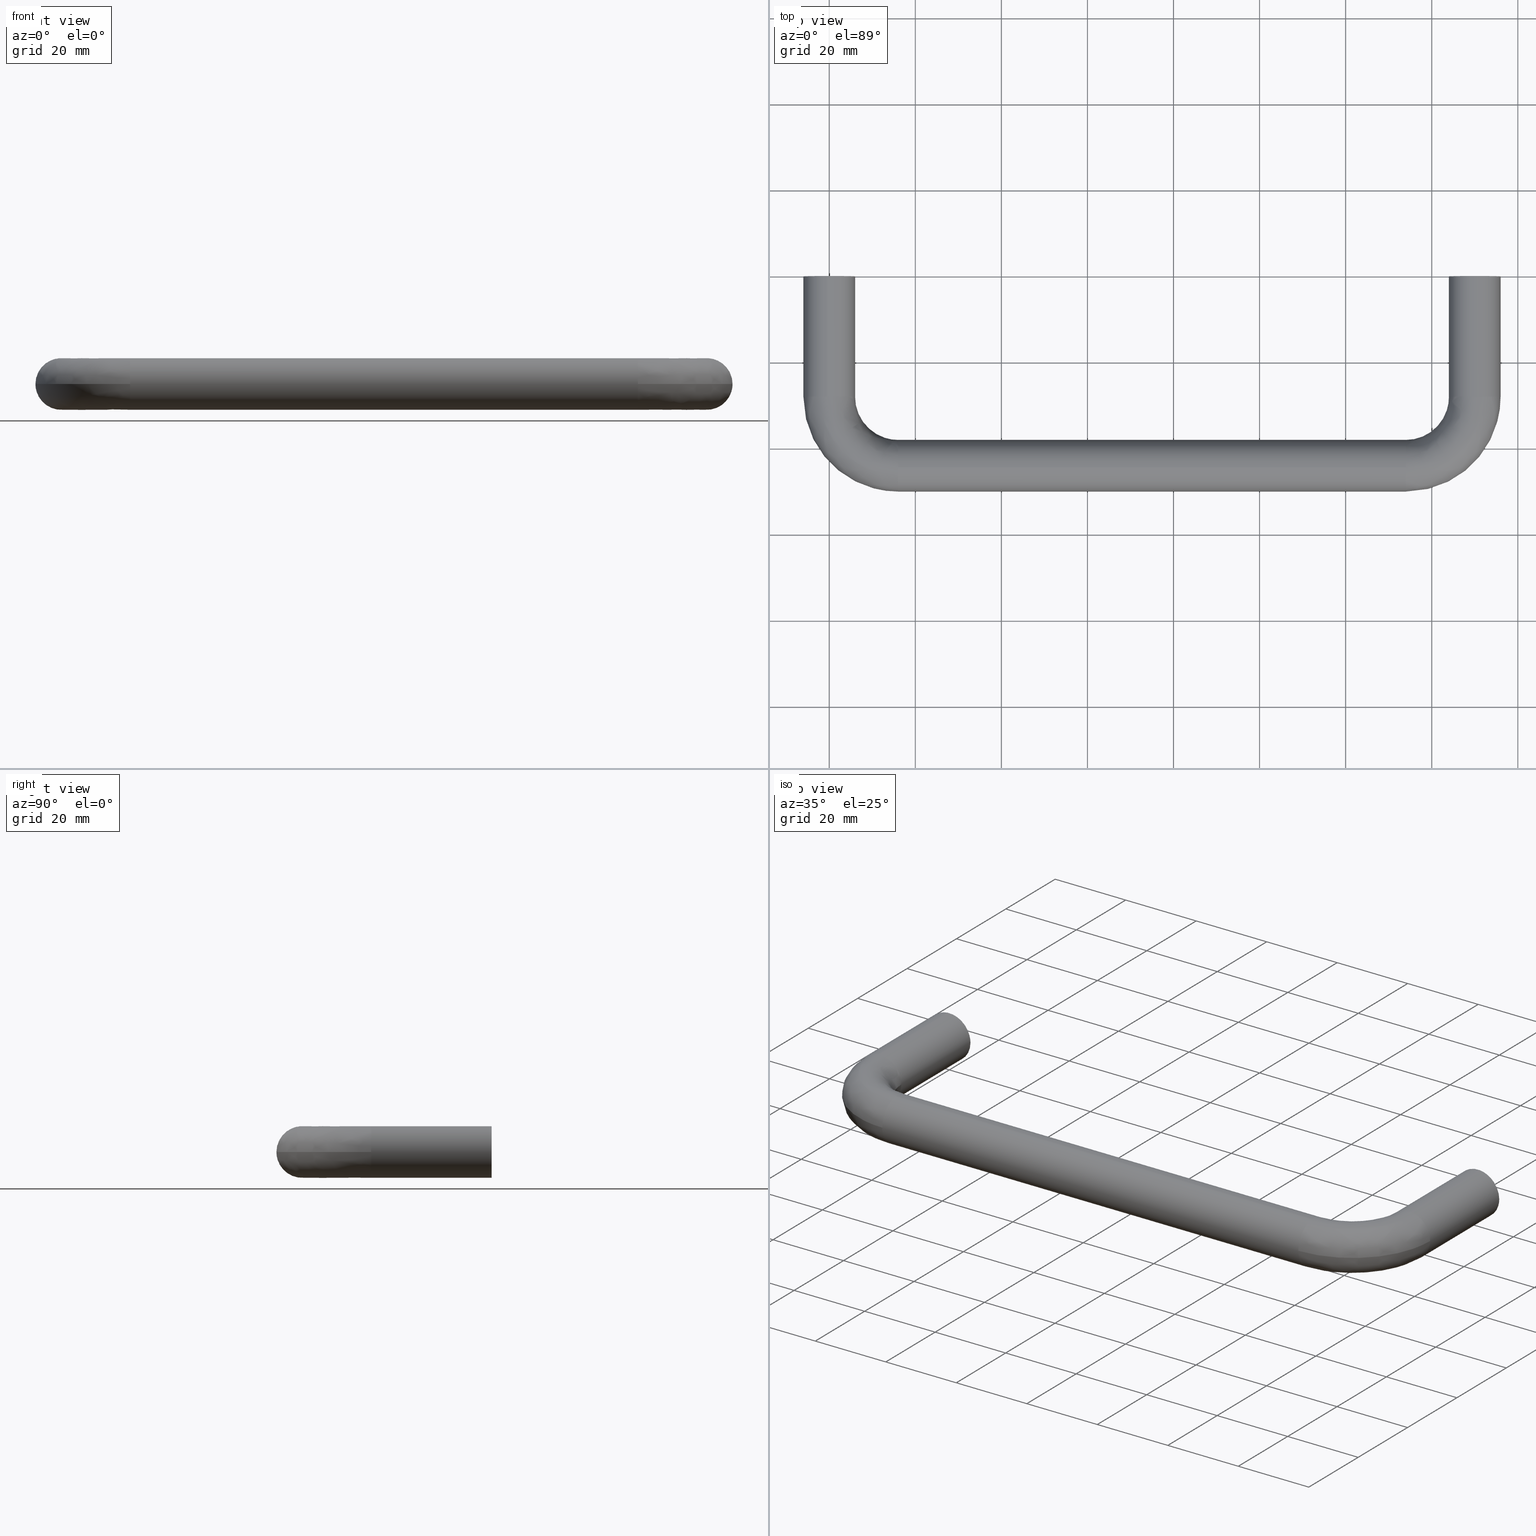
[diagram: canonical four-view strip — front | top / right | iso, engineering-drawing reading convention]
A machine part, canonical four-view strip (front | top / right | iso — engineering-drawing reading convention). The complete STEP part file that produces these views, byte-faithful:
ISO-10303-21;
HEADER;
/****************************************************************
 * Generated by software with PDE/Lib inside                    *
 * PDElib Version v5.1, created Sun 05/01/2005                  *
 * International Technegroup Inc. (www.iti-oh.com)              *
 ****************************************************************/
FILE_DESCRIPTION((''),'2;1');
FILE_NAME('','2011-05-27T14:34:39',(''),(''),'','CADfix','');
FILE_SCHEMA(('AUTOMOTIVE_DESIGN { 1 0 10303 214 1 1 1 1 }'));
ENDSEC;
DATA;
#5=CARTESIAN_POINT('',(145.601620989093500,-10.0,4.399599984494448));
#6=CARTESIAN_POINT('',(154.398379225483300,-10.0,4.399599984494448));
#7=CARTESIAN_POINT('',(145.601620989093500,-10.0,-4.399600199071169));
#8=CARTESIAN_POINT('',(154.398379225483300,-10.0,-4.399600199071169));
#9=B_SPLINE_SURFACE_WITH_KNOTS('',1,1,((#5,#7),(#6,#8)),.UNSPECIFIED.,.F.,.F.,.U.,(2,2),(2,2),(0.0,8.796758236389820),(0.0,8.799200183565617),.UNSPECIFIED.);
#10=CARTESIAN_POINT('',(153.987669334880910,-10.0,-0.313836383567220));
#11=VERTEX_POINT('',#10);
#12=CARTESIAN_POINT('',(150.0,-10.0,4.0));
#13=VERTEX_POINT('',#12);
#14=CARTESIAN_POINT('',(153.987669334880880,-9.999999999999998,-0.313836383567220));
#15=CARTESIAN_POINT('',(154.000000000000030,-9.999999999999998,-0.157160428360121));
#16=CARTESIAN_POINT('',(154.0,-10.0,0.0));
#17=CARTESIAN_POINT('',(153.999999999999970,-10.000000000000002,4.000000000000000));
#18=CARTESIAN_POINT('',(150.0,-10.0,4.0));
#26=(BOUNDED_CURVE()B_SPLINE_CURVE(2,(#14,#15,#16,#17,#18),.UNSPECIFIED.,.F.,.U.)B_SPLINE_CURVE_WITH_KNOTS((3,2,3),(0.736331300604573,0.750000000000000,1.0),.UNSPECIFIED.)CURVE()GEOMETRIC_REPRESENTATION_ITEM()RATIONAL_B_SPLINE_CURVE((0.969723356112977,0.983986122548320,1.0,0.707106781186548,1.0))REPRESENTATION_ITEM(''));
#27=EDGE_CURVE('',#11,#13,#26,.T.);
#28=ORIENTED_EDGE('',*,*,#27,.F.);
#29=CARTESIAN_POINT('',(150.0,-10.0,-4.0));
#30=VERTEX_POINT('',#29);
#31=CARTESIAN_POINT('',(150.0,-10.0,-4.0));
#32=CARTESIAN_POINT('',(153.697561966022850,-10.0,-4.000000000000001));
#33=CARTESIAN_POINT('',(153.987669334880930,-10.000000000000002,-0.313836383567223));
#41=(BOUNDED_CURVE()B_SPLINE_CURVE(2,(#31,#32,#33),.UNSPECIFIED.,.F.,.U.)B_SPLINE_CURVE_WITH_KNOTS((3,3),(0.500000000000000,0.736331300604573),.UNSPECIFIED.)CURVE()GEOMETRIC_REPRESENTATION_ITEM()RATIONAL_B_SPLINE_CURVE((1.0,0.723120658638228,0.969723356112977))REPRESENTATION_ITEM(''));
#42=EDGE_CURVE('',#30,#11,#41,.T.);
#43=ORIENTED_EDGE('',*,*,#42,.F.);
#44=CARTESIAN_POINT('',(146.012330665119090,-10.0,0.313836383567219));
#45=VERTEX_POINT('',#44);
#46=CARTESIAN_POINT('',(146.012330665119090,-10.0,0.313836383567219));
#47=CARTESIAN_POINT('',(146.0,-10.0,0.157160428360120));
#48=CARTESIAN_POINT('',(146.0,-10.0,0.0));
#49=CARTESIAN_POINT('',(146.000000000000090,-10.000000000000002,-4.000000000000000));
#50=CARTESIAN_POINT('',(150.0,-10.0,-4.0));
#58=(BOUNDED_CURVE()B_SPLINE_CURVE(2,(#46,#47,#48,#49,#50),.UNSPECIFIED.,.F.,.U.)B_SPLINE_CURVE_WITH_KNOTS((3,2,3),(0.236331300604573,0.250000000000000,0.500000000000000),.UNSPECIFIED.)CURVE()GEOMETRIC_REPRESENTATION_ITEM()RATIONAL_B_SPLINE_CURVE((0.969723356112977,0.983986122548320,1.0,0.707106781186548,1.0))REPRESENTATION_ITEM(''));
#59=EDGE_CURVE('',#45,#30,#58,.T.);
#60=ORIENTED_EDGE('',*,*,#59,.F.);
#61=CARTESIAN_POINT('',(150.0,-10.0,4.0));
#62=CARTESIAN_POINT('',(146.302438033977210,-9.999999999999998,4.0));
#63=CARTESIAN_POINT('',(146.012330665119090,-10.0,0.313836383567219));
#71=(BOUNDED_CURVE()B_SPLINE_CURVE(2,(#61,#62,#63),.UNSPECIFIED.,.F.,.U.)B_SPLINE_CURVE_WITH_KNOTS((3,3),(0.0,0.236331300604573),.UNSPECIFIED.)CURVE()GEOMETRIC_REPRESENTATION_ITEM()RATIONAL_B_SPLINE_CURVE((1.0,0.723120658638228,0.969723356112977))REPRESENTATION_ITEM(''));
#72=EDGE_CURVE('',#13,#45,#71,.T.);
#73=ORIENTED_EDGE('',*,*,#72,.F.);
#74=EDGE_LOOP('',(#28,#43,#60,#73));
#75=FACE_OUTER_BOUND('',#74,.T.);
#76=ADVANCED_FACE('',(#75),#9,.T.);
#77=CARTESIAN_POINT('',(146.012330665067510,-10.250000000000000,0.313836382911382));
#78=CARTESIAN_POINT('',(146.326167047978880,-10.250000000000002,4.301505717843893));
#79=CARTESIAN_POINT('',(150.313836382911400,-10.250000000000000,3.987669334932511));
#80=CARTESIAN_POINT('',(154.301505717843950,-10.250000000000002,3.673832952021128));
#81=CARTESIAN_POINT('',(153.987669334932490,-10.250000000000000,-0.313836382911382));
#82=CARTESIAN_POINT('',(146.012330665067510,0.256250000000001,0.313836382911382));
#83=CARTESIAN_POINT('',(146.326167047978880,0.256250000000001,4.301505717843893));
#84=CARTESIAN_POINT('',(150.313836382911400,0.256250000000001,3.987669334932511));
#85=CARTESIAN_POINT('',(154.301505717843950,0.256250000000001,3.673832952021128));
#86=CARTESIAN_POINT('',(153.987669334932490,0.256250000000001,-0.313836382911382));
#94=(BOUNDED_SURFACE()B_SPLINE_SURFACE(2,1,((#77,#82),(#78,#83),(#79,#84),(#80,#85),(#81,#86)),.UNSPECIFIED.,.F.,.F.,.U.)B_SPLINE_SURFACE_WITH_KNOTS((3,2,3),(2,2),(0.0,6.627416997969530,13.254833995939061),(0.0,10.506250000000000),.UNSPECIFIED.)GEOMETRIC_REPRESENTATION_ITEM()RATIONAL_B_SPLINE_SURFACE(((1.0,1.0),(0.707106781186548,0.707106781186548),(1.0,1.0),(0.707106781186548,0.707106781186548),(1.0,1.0)))REPRESENTATION_ITEM('')SURFACE());
#95=ORIENTED_EDGE('',*,*,#72,.T.);
#96=CARTESIAN_POINT('',(146.012330665119090,-2.775558E-017,0.313836383567221));
#97=VERTEX_POINT('',#96);
#98=CARTESIAN_POINT('',(146.012330665119090,-10.0,0.313836383567219));
#99=CARTESIAN_POINT('',(146.012330665119090,-2.775558E-017,0.313836383567221));
#100=QUASI_UNIFORM_CURVE('',1,(#98,#99),.UNSPECIFIED.,.F.,.U.);
#101=EDGE_CURVE('',#45,#97,#100,.T.);
#102=ORIENTED_EDGE('',*,*,#101,.T.);
#103=CARTESIAN_POINT('',(150.0,0.0,4.0));
#104=VERTEX_POINT('',#103);
#105=CARTESIAN_POINT('',(150.0,0.0,4.0));
#106=CARTESIAN_POINT('',(146.302438033977180,0.0,4.000000000000001));
#107=CARTESIAN_POINT('',(146.012330665119070,0.0,0.313836383567224));
#115=(BOUNDED_CURVE()B_SPLINE_CURVE(2,(#105,#106,#107),.UNSPECIFIED.,.F.,.U.)B_SPLINE_CURVE_WITH_KNOTS((3,3),(0.0,0.236331300604573),.UNSPECIFIED.)CURVE()GEOMETRIC_REPRESENTATION_ITEM()RATIONAL_B_SPLINE_CURVE((1.0,0.723120658638228,0.969723356112977))REPRESENTATION_ITEM(''));
#116=EDGE_CURVE('',#104,#97,#115,.T.);
#117=ORIENTED_EDGE('',*,*,#116,.F.);
#118=CARTESIAN_POINT('',(153.987669334880910,-2.775558E-017,-0.313836383567220));
#119=VERTEX_POINT('',#118);
#120=CARTESIAN_POINT('',(153.987669334880880,0.0,-0.313836383567220));
#121=CARTESIAN_POINT('',(154.000000000000030,0.0,-0.157160428360121));
#122=CARTESIAN_POINT('',(154.0,0.0,0.0));
#123=CARTESIAN_POINT('',(153.999999999999970,0.0,4.000000000000000));
#124=CARTESIAN_POINT('',(150.0,0.0,4.0));
#132=(BOUNDED_CURVE()B_SPLINE_CURVE(2,(#120,#121,#122,#123,#124),.UNSPECIFIED.,.F.,.U.)B_SPLINE_CURVE_WITH_KNOTS((3,2,3),(0.736331300604573,0.750000000000000,1.0),.UNSPECIFIED.)CURVE()GEOMETRIC_REPRESENTATION_ITEM()RATIONAL_B_SPLINE_CURVE((0.969723356112977,0.983986122548320,1.0,0.707106781186548,1.0))REPRESENTATION_ITEM(''));
#133=EDGE_CURVE('',#119,#104,#132,.T.);
#134=ORIENTED_EDGE('',*,*,#133,.F.);
#135=CARTESIAN_POINT('',(153.987669334880910,-10.0,-0.313836383567220));
#136=CARTESIAN_POINT('',(153.987669334880910,-2.775558E-017,-0.313836383567220));
#137=QUASI_UNIFORM_CURVE('',1,(#135,#136),.UNSPECIFIED.,.F.,.U.);
#138=EDGE_CURVE('',#11,#119,#137,.T.);
#139=ORIENTED_EDGE('',*,*,#138,.F.);
#140=ORIENTED_EDGE('',*,*,#27,.T.);
#141=EDGE_LOOP('',(#95,#102,#117,#134,#139,#140));
#142=FACE_OUTER_BOUND('',#141,.T.);
#143=ADVANCED_FACE('',(#142),#94,.F.);
#144=CARTESIAN_POINT('',(153.987669334932490,-10.250000000000000,-0.313836382911382));
#145=CARTESIAN_POINT('',(153.673832952021170,-10.250000000000002,-4.301505717843893));
#146=CARTESIAN_POINT('',(149.686163617088600,-10.250000000000000,-3.987669334932511));
#147=CARTESIAN_POINT('',(145.698494282156100,-10.250000000000002,-3.673832952021128));
#148=CARTESIAN_POINT('',(146.012330665067510,-10.250000000000000,0.313836382911382));
#149=CARTESIAN_POINT('',(153.987669334932490,0.256250000000001,-0.313836382911382));
#150=CARTESIAN_POINT('',(153.673832952021170,0.256250000000001,-4.301505717843893));
#151=CARTESIAN_POINT('',(149.686163617088600,0.256250000000001,-3.987669334932511));
#152=CARTESIAN_POINT('',(145.698494282156100,0.256250000000001,-3.673832952021128));
#153=CARTESIAN_POINT('',(146.012330665067510,0.256250000000001,0.313836382911382));
#161=(BOUNDED_SURFACE()B_SPLINE_SURFACE(2,1,((#144,#149),(#145,#150),(#146,#151),(#147,#152),(#148,#153)),.UNSPECIFIED.,.F.,.F.,.U.)B_SPLINE_SURFACE_WITH_KNOTS((3,2,3),(2,2),(0.0,6.627416997969530,13.254833995939061),(0.0,10.506250000000000),.UNSPECIFIED.)GEOMETRIC_REPRESENTATION_ITEM()RATIONAL_B_SPLINE_SURFACE(((1.0,1.0),(0.707106781186548,0.707106781186548),(1.0,1.0),(0.707106781186548,0.707106781186548),(1.0,1.0)))REPRESENTATION_ITEM('')SURFACE());
#162=ORIENTED_EDGE('',*,*,#59,.T.);
#163=ORIENTED_EDGE('',*,*,#42,.T.);
#164=ORIENTED_EDGE('',*,*,#138,.T.);
#165=CARTESIAN_POINT('',(150.0,0.0,-4.0));
#166=VERTEX_POINT('',#165);
#167=CARTESIAN_POINT('',(150.0,0.0,-4.0));
#168=CARTESIAN_POINT('',(153.697561966022790,0.0,-4.000000000000000));
#169=CARTESIAN_POINT('',(153.987669334880850,0.0,-0.313836383567218));
#177=(BOUNDED_CURVE()B_SPLINE_CURVE(2,(#167,#168,#169),.UNSPECIFIED.,.F.,.U.)B_SPLINE_CURVE_WITH_KNOTS((3,3),(0.500000000000000,0.736331300604573),.UNSPECIFIED.)CURVE()GEOMETRIC_REPRESENTATION_ITEM()RATIONAL_B_SPLINE_CURVE((1.0,0.723120658638228,0.969723356112978))REPRESENTATION_ITEM(''));
#178=EDGE_CURVE('',#166,#119,#177,.T.);
#179=ORIENTED_EDGE('',*,*,#178,.F.);
#180=CARTESIAN_POINT('',(146.012330665119070,0.0,0.313836383567224));
#181=CARTESIAN_POINT('',(146.000000000000030,0.0,0.157160428360122));
#182=CARTESIAN_POINT('',(146.0,0.0,0.0));
#183=CARTESIAN_POINT('',(146.000000000000090,0.0,-4.000000000000000));
#184=CARTESIAN_POINT('',(150.0,0.0,-4.0));
#192=(BOUNDED_CURVE()B_SPLINE_CURVE(2,(#180,#181,#182,#183,#184),.UNSPECIFIED.,.F.,.U.)B_SPLINE_CURVE_WITH_KNOTS((3,2,3),(0.236331300604573,0.250000000000000,0.500000000000000),.UNSPECIFIED.)CURVE()GEOMETRIC_REPRESENTATION_ITEM()RATIONAL_B_SPLINE_CURVE((0.969723356112977,0.983986122548320,1.0,0.707106781186548,1.0))REPRESENTATION_ITEM(''));
#193=EDGE_CURVE('',#97,#166,#192,.T.);
#194=ORIENTED_EDGE('',*,*,#193,.F.);
#195=ORIENTED_EDGE('',*,*,#101,.F.);
#196=EDGE_LOOP('',(#162,#163,#164,#179,#194,#195));
#197=FACE_OUTER_BOUND('',#196,.T.);
#198=ADVANCED_FACE('',(#197),#161,.F.);
#199=CARTESIAN_POINT('',(156.599399976741690,1.734723E-014,-6.597568516360731));
#200=CARTESIAN_POINT('',(143.400599701393300,1.734723E-014,-6.597568516360731));
#201=CARTESIAN_POINT('',(156.599399976741690,1.734723E-014,6.597568838225813));
#202=CARTESIAN_POINT('',(143.400599701393300,1.734723E-014,6.597568838225813));
#203=B_SPLINE_SURFACE_WITH_KNOTS('',1,1,((#199,#201),(#200,#202)),.UNSPECIFIED.,.F.,.F.,.U.,(2,2),(2,2),(0.0,13.198800275348420),(0.0,13.195137354586540),.UNSPECIFIED.);
#204=CARTESIAN_POINT('',(150.470754574599400,1.749989E-014,5.981504002380483));
#205=VERTEX_POINT('',#204);
#206=CARTESIAN_POINT('',(144.0,1.734723E-014,0.0));
#207=VERTEX_POINT('',#206);
#208=CARTESIAN_POINT('',(150.470754574599400,1.734723E-014,5.981504002380485));
#209=CARTESIAN_POINT('',(150.235740642162710,1.734723E-014,6.0));
#210=CARTESIAN_POINT('',(150.0,1.734723E-014,6.0));
#211=CARTESIAN_POINT('',(144.000000000000060,1.734723E-014,6.0));
#212=CARTESIAN_POINT('',(144.0,1.734723E-014,0.0));
#220=(BOUNDED_CURVE()B_SPLINE_CURVE(2,(#208,#209,#210,#211,#212),.UNSPECIFIED.,.F.,.U.)B_SPLINE_CURVE_WITH_KNOTS((3,2,3),(0.736331300626109,0.750000000000000,1.0),.UNSPECIFIED.)CURVE()GEOMETRIC_REPRESENTATION_ITEM()RATIONAL_B_SPLINE_CURVE((0.969723356157921,0.983986122573551,1.0,0.707106781186548,1.0))REPRESENTATION_ITEM(''));
#221=EDGE_CURVE('',#205,#207,#220,.T.);
#222=ORIENTED_EDGE('',*,*,#221,.F.);
#223=CARTESIAN_POINT('',(156.0,1.734723E-014,0.0));
#224=VERTEX_POINT('',#223);
#225=CARTESIAN_POINT('',(156.0,1.734723E-014,0.0));
#226=CARTESIAN_POINT('',(155.999999999999970,1.734723E-014,5.546342949733163));
#227=CARTESIAN_POINT('',(150.470754574599310,1.734723E-014,5.981504002380484));
#235=(BOUNDED_CURVE()B_SPLINE_CURVE(2,(#225,#226,#227),.UNSPECIFIED.,.F.,.U.)B_SPLINE_CURVE_WITH_KNOTS((3,3),(0.500000000000000,0.736331300626109),.UNSPECIFIED.)CURVE()GEOMETRIC_REPRESENTATION_ITEM()RATIONAL_B_SPLINE_CURVE((1.0,0.723120658612997,0.969723356157921))REPRESENTATION_ITEM(''));
#236=EDGE_CURVE('',#224,#205,#235,.T.);
#237=ORIENTED_EDGE('',*,*,#236,.F.);
#238=CARTESIAN_POINT('',(149.529245425400600,1.749989E-014,-5.981504002380483));
#239=VERTEX_POINT('',#238);
#240=CARTESIAN_POINT('',(149.529245425400570,1.734723E-014,-5.981504002380484));
#241=CARTESIAN_POINT('',(149.764259357837290,1.734723E-014,-6.0));
#242=CARTESIAN_POINT('',(150.0,1.734723E-014,-6.0));
#243=CARTESIAN_POINT('',(155.999999999999970,1.734723E-014,-6.0));
#244=CARTESIAN_POINT('',(156.0,1.734723E-014,0.0));
#252=(BOUNDED_CURVE()B_SPLINE_CURVE(2,(#240,#241,#242,#243,#244),.UNSPECIFIED.,.F.,.U.)B_SPLINE_CURVE_WITH_KNOTS((3,2,3),(0.236331300626108,0.250000000000000,0.500000000000000),.UNSPECIFIED.)CURVE()GEOMETRIC_REPRESENTATION_ITEM()RATIONAL_B_SPLINE_CURVE((0.969723356157920,0.983986122573550,1.0,0.707106781186548,1.0))REPRESENTATION_ITEM(''));
#253=EDGE_CURVE('',#239,#224,#252,.T.);
#254=ORIENTED_EDGE('',*,*,#253,.F.);
#255=CARTESIAN_POINT('',(144.0,1.734723E-014,0.0));
#256=CARTESIAN_POINT('',(144.000000000000060,1.734723E-014,-5.546342949733168));
#257=CARTESIAN_POINT('',(149.529245425400660,1.734723E-014,-5.981504002380485));
#265=(BOUNDED_CURVE()B_SPLINE_CURVE(2,(#255,#256,#257),.UNSPECIFIED.,.F.,.U.)B_SPLINE_CURVE_WITH_KNOTS((3,3),(0.0,0.236331300626109),.UNSPECIFIED.)CURVE()GEOMETRIC_REPRESENTATION_ITEM()RATIONAL_B_SPLINE_CURVE((1.0,0.723120658612997,0.969723356157921))REPRESENTATION_ITEM(''));
#266=EDGE_CURVE('',#207,#239,#265,.T.);
#267=ORIENTED_EDGE('',*,*,#266,.F.);
#268=EDGE_LOOP('',(#222,#237,#254,#267));
#269=FACE_OUTER_BOUND('',#268,.T.);
#270=ORIENTED_EDGE('',*,*,#178,.T.);
#271=ORIENTED_EDGE('',*,*,#133,.T.);
#272=ORIENTED_EDGE('',*,*,#116,.T.);
#273=ORIENTED_EDGE('',*,*,#193,.T.);
#274=EDGE_LOOP('',(#270,#271,#272,#273));
#275=FACE_BOUND('',#274,.T.);
#276=ADVANCED_FACE('',(#269,#275),#203,.T.);
#277=CARTESIAN_POINT('',(149.529245425632890,-28.700000000377589,-5.981504002398766));
#278=CARTESIAN_POINT('',(143.547741423234240,-28.700000000377589,-5.510749428031692));
#279=CARTESIAN_POINT('',(144.018495997601210,-28.700000000377589,0.470754574367073));
#280=CARTESIAN_POINT('',(144.489250571968400,-28.700000000377589,6.452258576765839));
#281=CARTESIAN_POINT('',(150.470754574367110,-28.700000000377589,5.981504002398766));
#282=CARTESIAN_POINT('',(149.529245425632890,0.717500000009458,-5.981504002398766));
#283=CARTESIAN_POINT('',(143.547741423234240,0.717500000009459,-5.510749428031692));
#284=CARTESIAN_POINT('',(144.018495997601210,0.717500000009458,0.470754574367073));
#285=CARTESIAN_POINT('',(144.489250571968400,0.717500000009459,6.452258576765839));
#286=CARTESIAN_POINT('',(150.470754574367110,0.717500000009458,5.981504002398766));
#294=(BOUNDED_SURFACE()B_SPLINE_SURFACE(2,1,((#277,#282),(#278,#283),(#279,#284),(#280,#285),(#281,#286)),.UNSPECIFIED.,.F.,.F.,.U.)B_SPLINE_SURFACE_WITH_KNOTS((3,2,3),(2,2),(0.0,9.941125496954282,19.882250993908560),(0.0,29.417500000387051),.UNSPECIFIED.)GEOMETRIC_REPRESENTATION_ITEM()RATIONAL_B_SPLINE_SURFACE(((1.0,1.0),(0.707106781186548,0.707106781186548),(1.0,1.0),(0.707106781186548,0.707106781186548),(1.0,1.0)))REPRESENTATION_ITEM('')SURFACE());
#295=CARTESIAN_POINT('',(144.0,-28.000000000368381,-4.420586E-016));
#296=VERTEX_POINT('',#295);
#297=CARTESIAN_POINT('',(149.529245425400600,-27.999987601051860,-5.981504002381076));
#298=VERTEX_POINT('',#297);
#299=CARTESIAN_POINT('',(144.0,-28.000000000368381,-4.420586E-016));
#300=CARTESIAN_POINT('',(144.000000000000030,-28.000000000368388,-5.546342949747148));
#301=CARTESIAN_POINT('',(149.529245425400520,-27.999987601051870,-5.981504002381668));
#309=(BOUNDED_CURVE()B_SPLINE_CURVE(2,(#299,#300,#301),.UNSPECIFIED.,.F.,.U.)B_SPLINE_CURVE_WITH_KNOTS((3,3),(0.0,0.472662601253080),.UNSPECIFIED.)CURVE()GEOMETRIC_REPRESENTATION_ITEM()RATIONAL_B_SPLINE_CURVE((1.0,0.723120658612492,0.969723356158820))REPRESENTATION_ITEM(''));
#310=EDGE_CURVE('',#296,#298,#309,.T.);
#311=ORIENTED_EDGE('',*,*,#310,.F.);
#312=CARTESIAN_POINT('',(150.470754574599310,-27.999985489720380,5.981504002379788));
#313=VERTEX_POINT('',#312);
#314=CARTESIAN_POINT('',(150.470754574599340,-27.999985489720387,5.981504002379788));
#315=CARTESIAN_POINT('',(150.235740642154520,-27.999986016738429,6.000000000000680));
#316=CARTESIAN_POINT('',(149.999999999983600,-27.999986545386118,6.000000000000666));
#317=CARTESIAN_POINT('',(144.000000000000060,-28.000000000368384,6.000000000000321));
#318=CARTESIAN_POINT('',(144.0,-28.000000000368381,-4.420586E-016));
#326=(BOUNDED_CURVE()B_SPLINE_CURVE(2,(#314,#315,#316,#317,#318),.UNSPECIFIED.,.F.,.U.)B_SPLINE_CURVE_WITH_KNOTS((3,2,3),(0.472662601251207,0.500000000000000,1.0),.UNSPECIFIED.)CURVE()GEOMETRIC_REPRESENTATION_ITEM()RATIONAL_B_SPLINE_CURVE((0.969723356156866,0.983986122572958,1.0,0.707106781186548,1.0))REPRESENTATION_ITEM(''));
#327=EDGE_CURVE('',#313,#296,#326,.T.);
#328=ORIENTED_EDGE('',*,*,#327,.F.);
#329=CARTESIAN_POINT('',(150.470754574599310,-27.999985489720380,5.981504002379788));
#330=CARTESIAN_POINT('',(150.470754574599400,1.749989E-014,5.981504002380483));
#331=QUASI_UNIFORM_CURVE('',1,(#329,#330),.UNSPECIFIED.,.F.,.U.);
#332=EDGE_CURVE('',#313,#205,#331,.T.);
#333=ORIENTED_EDGE('',*,*,#332,.T.);
#334=ORIENTED_EDGE('',*,*,#221,.T.);
#335=ORIENTED_EDGE('',*,*,#266,.T.);
#336=CARTESIAN_POINT('',(149.529245425400600,-27.999987601051860,-5.981504002381076));
#337=CARTESIAN_POINT('',(149.529245425400600,1.749989E-014,-5.981504002380483));
#338=QUASI_UNIFORM_CURVE('',1,(#336,#337),.UNSPECIFIED.,.F.,.U.);
#339=EDGE_CURVE('',#298,#239,#338,.T.);
#340=ORIENTED_EDGE('',*,*,#339,.F.);
#341=EDGE_LOOP('',(#311,#328,#333,#334,#335,#340));
#342=FACE_OUTER_BOUND('',#341,.T.);
#343=ADVANCED_FACE('',(#342),#294,.T.);
#344=CARTESIAN_POINT('',(150.470754574367110,-28.700000000377589,5.981504002398766));
#345=CARTESIAN_POINT('',(156.452258576765810,-28.700000000377589,5.510749428031692));
#346=CARTESIAN_POINT('',(155.981504002398790,-28.700000000377589,-0.470754574367073));
#347=CARTESIAN_POINT('',(155.510749428031660,-28.700000000377589,-6.452258576765839));
#348=CARTESIAN_POINT('',(149.529245425632890,-28.700000000377589,-5.981504002398766));
#349=CARTESIAN_POINT('',(150.470754574367110,0.717500000009458,5.981504002398766));
#350=CARTESIAN_POINT('',(156.452258576765810,0.717500000009459,5.510749428031692));
#351=CARTESIAN_POINT('',(155.981504002398790,0.717500000009458,-0.470754574367073));
#352=CARTESIAN_POINT('',(155.510749428031660,0.717500000009459,-6.452258576765839));
#353=CARTESIAN_POINT('',(149.529245425632890,0.717500000009458,-5.981504002398766));
#361=(BOUNDED_SURFACE()B_SPLINE_SURFACE(2,1,((#344,#349),(#345,#350),(#346,#351),(#347,#352),(#348,#353)),.UNSPECIFIED.,.F.,.F.,.U.)B_SPLINE_SURFACE_WITH_KNOTS((3,2,3),(2,2),(0.0,9.941125496954307,19.882250993908610),(0.0,29.417500000387051),.UNSPECIFIED.)GEOMETRIC_REPRESENTATION_ITEM()RATIONAL_B_SPLINE_SURFACE(((1.0,1.0),(0.707106781186548,0.707106781186548),(1.0,1.0),(0.707106781186548,0.707106781186548),(1.0,1.0)))REPRESENTATION_ITEM('')SURFACE());
#362=CARTESIAN_POINT('',(155.999999999967090,-27.999973090403870,-7.347638E-016));
#363=VERTEX_POINT('',#362);
#364=CARTESIAN_POINT('',(149.529245425400520,-27.999987601051860,-5.981504002381076));
#365=CARTESIAN_POINT('',(149.764259357829050,-27.999987074033822,-6.000000000000001));
#366=CARTESIAN_POINT('',(149.999999999983490,-27.999986545386129,-6.000000000000001));
#367=CARTESIAN_POINT('',(155.999999999967170,-27.999973090403870,-6.000000000000003));
#368=CARTESIAN_POINT('',(155.999999999967090,-27.999973090403870,-7.347638E-016));
#376=(BOUNDED_CURVE()B_SPLINE_CURVE(2,(#364,#365,#366,#367,#368),.UNSPECIFIED.,.F.,.U.)B_SPLINE_CURVE_WITH_KNOTS((3,2,3),(0.472662601253080,0.500000000000000,1.0),.UNSPECIFIED.)CURVE()GEOMETRIC_REPRESENTATION_ITEM()RATIONAL_B_SPLINE_CURVE((0.969723356158820,0.983986122574055,1.0,0.707106781186548,1.0))REPRESENTATION_ITEM(''));
#377=EDGE_CURVE('',#298,#363,#376,.T.);
#378=ORIENTED_EDGE('',*,*,#377,.F.);
#379=ORIENTED_EDGE('',*,*,#339,.T.);
#380=ORIENTED_EDGE('',*,*,#253,.T.);
#381=ORIENTED_EDGE('',*,*,#236,.T.);
#382=ORIENTED_EDGE('',*,*,#332,.F.);
#383=CARTESIAN_POINT('',(155.999999999967090,-27.999973090403870,-7.347638E-016));
#384=CARTESIAN_POINT('',(155.999999999967140,-27.999973090403873,5.546342949717099));
#385=CARTESIAN_POINT('',(150.470754574599310,-27.999985489720384,5.981504002379788));
#393=(BOUNDED_CURVE()B_SPLINE_CURVE(2,(#383,#384,#385),.UNSPECIFIED.,.F.,.U.)B_SPLINE_CURVE_WITH_KNOTS((3,3),(0.0,0.472662601251207),.UNSPECIFIED.)CURVE()GEOMETRIC_REPRESENTATION_ITEM()RATIONAL_B_SPLINE_CURVE((1.0,0.723120658613589,0.969723356156866))REPRESENTATION_ITEM(''));
#394=EDGE_CURVE('',#363,#313,#393,.T.);
#395=ORIENTED_EDGE('',*,*,#394,.F.);
#396=EDGE_LOOP('',(#378,#379,#380,#381,#382,#395));
#397=FACE_OUTER_BOUND('',#396,.T.);
#398=ADVANCED_FACE('',(#397),#361,.T.);
#399=CARTESIAN_POINT('',(132.470154332437600,-49.946744000726859,-0.167740426151150));
#400=CARTESIAN_POINT('',(157.705853460307820,-51.705853460307821,-0.167740426151149));
#401=CARTESIAN_POINT('',(155.946744000726880,-26.470154332437591,-0.167740426151150));
#402=CARTESIAN_POINT('',(132.470154332437630,-49.946744000726845,-0.084358652198840));
#403=CARTESIAN_POINT('',(157.705853460307850,-51.705853460307829,-0.084358652198840));
#404=CARTESIAN_POINT('',(155.946744000726820,-26.470154332437588,-0.084358652198840));
#405=CARTESIAN_POINT('',(132.470154332437570,-49.946744000726852,5.999999999999997));
#406=CARTESIAN_POINT('',(157.705853460307820,-51.705853460307814,5.999999999999999));
#407=CARTESIAN_POINT('',(155.946744000726910,-26.470154332437588,5.999999999999998));
#408=CARTESIAN_POINT('',(132.887384969045510,-43.961268364164987,5.999999999999998));
#409=CARTESIAN_POINT('',(151.240620698405680,-45.240620698405699,5.999999999999998));
#410=CARTESIAN_POINT('',(149.961268364164990,-26.887384969045527,5.999999999999999));
#411=CARTESIAN_POINT('',(133.304615605653450,-37.975792727603107,5.999999999999997));
#412=CARTESIAN_POINT('',(144.775387936503590,-38.775387936503549,5.999999999999999));
#413=CARTESIAN_POINT('',(143.975792727603110,-27.304615605653442,5.999999999999998));
#414=CARTESIAN_POINT('',(133.304615605653510,-37.975792727603114,-0.084358652198840));
#415=CARTESIAN_POINT('',(144.775387936503560,-38.775387936503563,-0.084358652198840));
#416=CARTESIAN_POINT('',(143.975792727603080,-27.304615605653449,-0.084358652198840));
#417=CARTESIAN_POINT('',(133.304615605653420,-37.975792727603107,-0.167740426151150));
#418=CARTESIAN_POINT('',(144.775387936503590,-38.775387936503563,-0.167740426151150));
#419=CARTESIAN_POINT('',(143.975792727603140,-27.304615605653449,-0.167740426151150));
#427=(BOUNDED_SURFACE()B_SPLINE_SURFACE(2,2,((#399,#402,#405,#408,#411,#414,#417),(#400,#403,#406,#409,#412,#415,#418),(#401,#404,#407,#410,#413,#416,#419)),.UNSPECIFIED.,.F.,.F.,.U.)B_SPLINE_SURFACE_WITH_KNOTS((3,3),(3,1,2,1,3),(0.0,40.092296910875270),(0.0,0.198822509939086,10.139948006893400,20.081073503847708,20.279896013786800),.UNSPECIFIED.)GEOMETRIC_REPRESENTATION_ITEM()RATIONAL_B_SPLINE_SURFACE(((0.927078278878390,0.921710467872278,0.647952106560563,0.916342656866165,0.647952106560563,0.921710467872278,0.927078278878390),(0.608370985386885,0.604848499157232,0.425201701444961,0.601326012927580,0.425201701444961,0.604848499157232,0.608370985386885),(0.927078278878390,0.921710467872278,0.647952106560563,0.916342656866165,0.647952106560563,0.921710467872278,0.927078278878390)))REPRESENTATION_ITEM('')SURFACE());
#428=CARTESIAN_POINT('',(133.999973486176490,-49.999999999968040,-7.347638E-016));
#429=VERTEX_POINT('',#428);
#430=CARTESIAN_POINT('',(133.999973486176510,-49.999999999968033,-7.347638E-016));
#431=CARTESIAN_POINT('',(156.000026909636770,-50.000026513863915,-7.347638E-016));
#432=CARTESIAN_POINT('',(155.999999999967090,-27.999973090403863,-7.347638E-016));
#440=(BOUNDED_CURVE()B_SPLINE_CURVE(2,(#430,#431,#432),.UNSPECIFIED.,.F.,.U.)B_SPLINE_CURVE_WITH_KNOTS((3,3),(-1.734752043948219,-0.265247937358810),.UNSPECIFIED.)CURVE()GEOMETRIC_REPRESENTATION_ITEM()RATIONAL_B_SPLINE_CURVE((0.889030167379974,0.628638499101433,0.889030174004650))REPRESENTATION_ITEM(''));
#441=EDGE_CURVE('',#429,#363,#440,.T.);
#442=ORIENTED_EDGE('',*,*,#441,.T.);
#443=ORIENTED_EDGE('',*,*,#394,.T.);
#444=ORIENTED_EDGE('',*,*,#327,.T.);
#445=CARTESIAN_POINT('',(134.000000000131590,-38.0,-2.210293E-016));
#446=VERTEX_POINT('',#445);
#447=CARTESIAN_POINT('',(134.000000000131620,-37.999999999999993,-8.841173E-016));
#448=CARTESIAN_POINT('',(143.999999999631630,-37.999999999868358,-8.689584E-016));
#449=CARTESIAN_POINT('',(144.0,-28.000000000368374,-8.841173E-016));
#457=(BOUNDED_CURVE()B_SPLINE_CURVE(2,(#447,#448,#449),.UNSPECIFIED.,.F.,.U.)B_SPLINE_CURVE_WITH_KNOTS((3,3),(-1.734750791644724,-0.265249208379877),.UNSPECIFIED.)CURVE()GEOMETRIC_REPRESENTATION_ITEM()RATIONAL_B_SPLINE_CURVE((0.889029723571595,0.628638946226510,0.889029723562876))REPRESENTATION_ITEM(''));
#458=EDGE_CURVE('',#446,#296,#457,.T.);
#459=ORIENTED_EDGE('',*,*,#458,.F.);
#460=CARTESIAN_POINT('',(133.999985703023610,-44.470754574599333,5.981504002379809));
#461=VERTEX_POINT('',#460);
#462=CARTESIAN_POINT('',(133.999985703023640,-44.470754574599326,5.981504002379809));
#463=CARTESIAN_POINT('',(133.999986222286030,-44.235740642154759,6.000000000000660));
#464=CARTESIAN_POINT('',(133.999986743154100,-43.999999999984077,6.000000000000647));
#465=CARTESIAN_POINT('',(134.000000000131650,-38.000000000000021,6.000000000000312));
#466=CARTESIAN_POINT('',(134.000000000131590,-38.0,-2.210293E-016));
#474=(BOUNDED_CURVE()B_SPLINE_CURVE(2,(#462,#463,#464,#465,#466),.UNSPECIFIED.,.F.,.U.)B_SPLINE_CURVE_WITH_KNOTS((3,2,3),(0.472662601251237,0.500000000000000,1.0),.UNSPECIFIED.)CURVE()GEOMETRIC_REPRESENTATION_ITEM()RATIONAL_B_SPLINE_CURVE((0.969723356156897,0.983986122572976,1.0,0.707106781186548,1.0))REPRESENTATION_ITEM(''));
#475=EDGE_CURVE('',#461,#446,#474,.T.);
#476=ORIENTED_EDGE('',*,*,#475,.F.);
#477=CARTESIAN_POINT('',(133.999973486176490,-49.999999999968040,-7.347638E-016));
#478=CARTESIAN_POINT('',(133.999973486176540,-49.999999999968075,5.546342949717582));
#479=CARTESIAN_POINT('',(133.999985703023580,-44.470754574599319,5.981504002379809));
#487=(BOUNDED_CURVE()B_SPLINE_CURVE(2,(#477,#478,#479),.UNSPECIFIED.,.F.,.U.)B_SPLINE_CURVE_WITH_KNOTS((3,3),(0.0,0.472662601251237),.UNSPECIFIED.)CURVE()GEOMETRIC_REPRESENTATION_ITEM()RATIONAL_B_SPLINE_CURVE((1.0,0.723120658613572,0.969723356156897))REPRESENTATION_ITEM(''));
#488=EDGE_CURVE('',#429,#461,#487,.T.);
#489=ORIENTED_EDGE('',*,*,#488,.F.);
#490=EDGE_LOOP('',(#442,#443,#444,#459,#476,#489));
#491=FACE_OUTER_BOUND('',#490,.T.);
#492=ADVANCED_FACE('',(#491),#427,.T.);
#493=CARTESIAN_POINT('',(133.304615605653480,-37.975792727603114,0.167740426151145));
#494=CARTESIAN_POINT('',(144.775387936503560,-38.775387936503563,0.167740426151145));
#495=CARTESIAN_POINT('',(143.975792727603110,-27.304615605653449,0.167740426151145));
#496=CARTESIAN_POINT('',(133.304615605653420,-37.975792727603107,0.084358652198837));
#497=CARTESIAN_POINT('',(144.775387936503560,-38.775387936503556,0.084358652198837));
#498=CARTESIAN_POINT('',(143.975792727603110,-27.304615605653453,0.084358652198837));
#499=CARTESIAN_POINT('',(133.304615605653450,-37.975792727603107,-5.999999999999997));
#500=CARTESIAN_POINT('',(144.775387936503590,-38.775387936503549,-5.999999999999999));
#501=CARTESIAN_POINT('',(143.975792727603110,-27.304615605653442,-5.999999999999998));
#502=CARTESIAN_POINT('',(132.887384969045510,-43.961268364164987,-5.999999999999998));
#503=CARTESIAN_POINT('',(151.240620698405680,-45.240620698405699,-5.999999999999998));
#504=CARTESIAN_POINT('',(149.961268364164990,-26.887384969045527,-5.999999999999999));
#505=CARTESIAN_POINT('',(132.470154332437570,-49.946744000726852,-5.999999999999997));
#506=CARTESIAN_POINT('',(157.705853460307820,-51.705853460307814,-5.999999999999999));
#507=CARTESIAN_POINT('',(155.946744000726910,-26.470154332437588,-5.999999999999998));
#508=CARTESIAN_POINT('',(132.470154332437630,-49.946744000726845,0.084358652198840));
#509=CARTESIAN_POINT('',(157.705853460307850,-51.705853460307829,0.084358652198840));
#510=CARTESIAN_POINT('',(155.946744000726820,-26.470154332437588,0.084358652198840));
#511=CARTESIAN_POINT('',(132.470154332437600,-49.946744000726859,0.167740426151150));
#512=CARTESIAN_POINT('',(157.705853460307820,-51.705853460307821,0.167740426151149));
#513=CARTESIAN_POINT('',(155.946744000726880,-26.470154332437591,0.167740426151150));
#521=(BOUNDED_SURFACE()B_SPLINE_SURFACE(2,2,((#493,#496,#499,#502,#505,#508,#511),(#494,#497,#500,#503,#506,#509,#512),(#495,#498,#501,#504,#507,#510,#513)),.UNSPECIFIED.,.F.,.F.,.U.)B_SPLINE_SURFACE_WITH_KNOTS((3,3),(3,1,2,1,3),(0.0,40.092296910875270),(0.0,0.198822509939081,10.139948006893359,20.081073503847641,20.279896013786729),.UNSPECIFIED.)GEOMETRIC_REPRESENTATION_ITEM()RATIONAL_B_SPLINE_SURFACE(((0.927078278878389,0.921710467872277,0.647952106560563,0.916342656866165,0.647952106560563,0.921710467872278,0.927078278878390),(0.608370985386885,0.604848499157232,0.425201701444961,0.601326012927580,0.425201701444961,0.604848499157232,0.608370985386885),(0.927078278878389,0.921710467872277,0.647952106560563,0.916342656866165,0.647952106560563,0.921710467872278,0.927078278878390)))REPRESENTATION_ITEM('')SURFACE());
#522=ORIENTED_EDGE('',*,*,#441,.F.);
#523=CARTESIAN_POINT('',(133.999987783284500,-43.529245425400553,-5.981504002381058));
#524=VERTEX_POINT('',#523);
#525=CARTESIAN_POINT('',(133.999987783284470,-43.529245425400539,-5.981504002381058));
#526=CARTESIAN_POINT('',(133.999987264022110,-43.764259357829282,-6.000000000000001));
#527=CARTESIAN_POINT('',(133.999986743154010,-43.999999999984020,-6.000000000000001));
#528=CARTESIAN_POINT('',(133.999973486176510,-49.999999999968047,-6.000000000000003));
#529=CARTESIAN_POINT('',(133.999973486176490,-49.999999999968040,-7.347638E-016));
#537=(BOUNDED_CURVE()B_SPLINE_CURVE(2,(#525,#526,#527,#528,#529),.UNSPECIFIED.,.F.,.U.)B_SPLINE_CURVE_WITH_KNOTS((3,2,3),(0.472662601253055,0.500000000000000,1.0),.UNSPECIFIED.)CURVE()GEOMETRIC_REPRESENTATION_ITEM()RATIONAL_B_SPLINE_CURVE((0.969723356158795,0.983986122574041,1.0,0.707106781186548,1.0))REPRESENTATION_ITEM(''));
#538=EDGE_CURVE('',#524,#429,#537,.T.);
#539=ORIENTED_EDGE('',*,*,#538,.F.);
#540=CARTESIAN_POINT('',(134.000000000131590,-38.0,-2.210293E-016));
#541=CARTESIAN_POINT('',(134.000000000131620,-37.999999999999993,-5.546342949746755));
#542=CARTESIAN_POINT('',(133.999987783284550,-43.529245425400489,-5.981504002381636));
#550=(BOUNDED_CURVE()B_SPLINE_CURVE(2,(#540,#541,#542),.UNSPECIFIED.,.F.,.U.)B_SPLINE_CURVE_WITH_KNOTS((3,3),(0.0,0.472662601253055),.UNSPECIFIED.)CURVE()GEOMETRIC_REPRESENTATION_ITEM()RATIONAL_B_SPLINE_CURVE((1.0,0.723120658612506,0.969723356158795))REPRESENTATION_ITEM(''));
#551=EDGE_CURVE('',#446,#524,#550,.T.);
#552=ORIENTED_EDGE('',*,*,#551,.F.);
#553=ORIENTED_EDGE('',*,*,#458,.T.);
#554=ORIENTED_EDGE('',*,*,#310,.T.);
#555=ORIENTED_EDGE('',*,*,#377,.T.);
#556=EDGE_LOOP('',(#522,#539,#552,#553,#554,#555));
#557=FACE_OUTER_BOUND('',#556,.T.);
#558=ADVANCED_FACE('',(#557),#521,.T.);
#559=CARTESIAN_POINT('',(13.049999999604820,-43.529245425632929,-5.981504002398766));
#560=CARTESIAN_POINT('',(13.049999999604820,-37.547741423234164,-5.510749428031693));
#561=CARTESIAN_POINT('',(13.049999999604820,-38.018495997601242,0.470754574367073));
#562=CARTESIAN_POINT('',(13.049999999604820,-38.489250571968299,6.452258576765838));
#563=CARTESIAN_POINT('',(13.049999999604820,-44.470754574367071,5.981504002398766));
#564=CARTESIAN_POINT('',(137.023750000144790,-43.529245425632922,-5.981504002398766));
#565=CARTESIAN_POINT('',(137.023750000144790,-37.547741423234150,-5.510749428031693));
#566=CARTESIAN_POINT('',(137.023750000144790,-38.018495997601221,0.470754574367073));
#567=CARTESIAN_POINT('',(137.023750000144790,-38.489250571968284,6.452258576765838));
#568=CARTESIAN_POINT('',(137.023750000144790,-44.470754574367056,5.981504002398766));
#576=(BOUNDED_SURFACE()B_SPLINE_SURFACE(2,1,((#559,#564),(#560,#565),(#561,#566),(#562,#567),(#563,#568)),.UNSPECIFIED.,.F.,.F.,.U.)B_SPLINE_SURFACE_WITH_KNOTS((3,2,3),(2,2),(0.0,9.941125496954275,19.882250993908549),(0.0,123.973750000539990),.UNSPECIFIED.)GEOMETRIC_REPRESENTATION_ITEM()RATIONAL_B_SPLINE_SURFACE(((1.0,1.0),(0.707106781186548,0.707106781186548),(1.0,1.0),(0.707106781186548,0.707106781186548),(1.0,1.0)))REPRESENTATION_ITEM('')SURFACE());
#577=ORIENTED_EDGE('',*,*,#551,.T.);
#578=CARTESIAN_POINT('',(15.999999999718140,-43.529245425400610,-5.981504002380483));
#579=VERTEX_POINT('',#578);
#580=CARTESIAN_POINT('',(15.999999999718140,-43.529245425400610,-5.981504002380483));
#581=CARTESIAN_POINT('',(133.999987783284500,-43.529245425400553,-5.981504002381058));
#582=QUASI_UNIFORM_CURVE('',1,(#580,#581),.UNSPECIFIED.,.F.,.U.);
#583=EDGE_CURVE('',#579,#524,#582,.T.);
#584=ORIENTED_EDGE('',*,*,#583,.F.);
#585=CARTESIAN_POINT('',(15.999999999617669,-38.0,-4.410686E-016));
#586=VERTEX_POINT('',#585);
#587=CARTESIAN_POINT('',(15.999999999617669,-38.0,-4.410686E-016));
#588=CARTESIAN_POINT('',(15.999999999617668,-38.0,-5.546342949733146));
#589=CARTESIAN_POINT('',(15.999999999718137,-43.529245425400610,-5.981504002380483));
#597=(BOUNDED_CURVE()B_SPLINE_CURVE(2,(#587,#588,#589),.UNSPECIFIED.,.F.,.U.)B_SPLINE_CURVE_WITH_KNOTS((3,3),(0.0,0.472662601252217),.UNSPECIFIED.)CURVE()GEOMETRIC_REPRESENTATION_ITEM()RATIONAL_B_SPLINE_CURVE((1.0,0.723120658612998,0.969723356157920))REPRESENTATION_ITEM(''));
#598=EDGE_CURVE('',#586,#579,#597,.T.);
#599=ORIENTED_EDGE('',*,*,#598,.F.);
#600=CARTESIAN_POINT('',(15.999999999735239,-44.470754574599397,5.981504002380483));
#601=VERTEX_POINT('',#600);
#602=CARTESIAN_POINT('',(15.999999999735243,-44.470754574599397,5.981504002380483));
#603=CARTESIAN_POINT('',(15.999999999730976,-44.235740642162725,5.999999999999999));
#604=CARTESIAN_POINT('',(15.999999999726690,-44.000000000000007,5.999999999999999));
#605=CARTESIAN_POINT('',(15.999999999617666,-38.0,6.0));
#606=CARTESIAN_POINT('',(15.999999999617669,-38.0,-4.410686E-016));
#614=(BOUNDED_CURVE()B_SPLINE_CURVE(2,(#602,#603,#604,#605,#606),.UNSPECIFIED.,.F.,.U.)B_SPLINE_CURVE_WITH_KNOTS((3,2,3),(0.472662601252218,0.500000000000000,1.0),.UNSPECIFIED.)CURVE()GEOMETRIC_REPRESENTATION_ITEM()RATIONAL_B_SPLINE_CURVE((0.969723356157921,0.983986122573550,1.0,0.707106781186548,1.0))REPRESENTATION_ITEM(''));
#615=EDGE_CURVE('',#601,#586,#614,.T.);
#616=ORIENTED_EDGE('',*,*,#615,.F.);
#617=CARTESIAN_POINT('',(15.999999999735239,-44.470754574599397,5.981504002380483));
#618=CARTESIAN_POINT('',(133.999985703023610,-44.470754574599333,5.981504002379809));
#619=QUASI_UNIFORM_CURVE('',1,(#617,#618),.UNSPECIFIED.,.F.,.U.);
#620=EDGE_CURVE('',#601,#461,#619,.T.);
#621=ORIENTED_EDGE('',*,*,#620,.T.);
#622=ORIENTED_EDGE('',*,*,#475,.T.);
#623=EDGE_LOOP('',(#577,#584,#599,#616,#621,#622));
#624=FACE_OUTER_BOUND('',#623,.T.);
#625=ADVANCED_FACE('',(#624),#576,.T.);
#626=CARTESIAN_POINT('',(13.049999999604820,-44.470754574367071,5.981504002398766));
#627=CARTESIAN_POINT('',(13.049999999604820,-50.452258576765843,5.510749428031693));
#628=CARTESIAN_POINT('',(13.049999999604820,-49.981504002398772,-0.470754574367073));
#629=CARTESIAN_POINT('',(13.049999999604820,-49.510749428031694,-6.452258576765838));
#630=CARTESIAN_POINT('',(13.049999999604820,-43.529245425632929,-5.981504002398766));
#631=CARTESIAN_POINT('',(137.023750000144790,-44.470754574367056,5.981504002398766));
#632=CARTESIAN_POINT('',(137.023750000144790,-50.452258576765821,5.510749428031693));
#633=CARTESIAN_POINT('',(137.023750000144790,-49.981504002398751,-0.470754574367073));
#634=CARTESIAN_POINT('',(137.023750000144790,-49.510749428031673,-6.452258576765838));
#635=CARTESIAN_POINT('',(137.023750000144790,-43.529245425632922,-5.981504002398766));
#643=(BOUNDED_SURFACE()B_SPLINE_SURFACE(2,1,((#626,#631),(#627,#632),(#628,#633),(#629,#634),(#630,#635)),.UNSPECIFIED.,.F.,.F.,.U.)B_SPLINE_SURFACE_WITH_KNOTS((3,2,3),(2,2),(0.0,9.941125496954285,19.882250993908571),(0.0,123.973750000539990),.UNSPECIFIED.)GEOMETRIC_REPRESENTATION_ITEM()RATIONAL_B_SPLINE_SURFACE(((1.0,1.0),(0.707106781186548,0.707106781186548),(1.0,1.0),(0.707106781186548,0.707106781186548),(1.0,1.0)))REPRESENTATION_ITEM('')SURFACE());
#644=ORIENTED_EDGE('',*,*,#538,.T.);
#645=ORIENTED_EDGE('',*,*,#488,.T.);
#646=ORIENTED_EDGE('',*,*,#620,.F.);
#647=CARTESIAN_POINT('',(15.999999999835710,-50.0,-7.347638E-016));
#648=VERTEX_POINT('',#647);
#649=CARTESIAN_POINT('',(15.999999999835710,-50.0,-7.347638E-016));
#650=CARTESIAN_POINT('',(15.999999999835715,-49.999999999999986,5.546342949733154));
#651=CARTESIAN_POINT('',(15.999999999735246,-44.470754574599397,5.981504002380483));
#659=(BOUNDED_CURVE()B_SPLINE_CURVE(2,(#649,#650,#651),.UNSPECIFIED.,.F.,.U.)B_SPLINE_CURVE_WITH_KNOTS((3,3),(0.0,0.472662601252217),.UNSPECIFIED.)CURVE()GEOMETRIC_REPRESENTATION_ITEM()RATIONAL_B_SPLINE_CURVE((1.0,0.723120658612997,0.969723356157920))REPRESENTATION_ITEM(''));
#660=EDGE_CURVE('',#648,#601,#659,.T.);
#661=ORIENTED_EDGE('',*,*,#660,.F.);
#662=CARTESIAN_POINT('',(15.999999999718137,-43.529245425400610,-5.981504002380483));
#663=CARTESIAN_POINT('',(15.999999999722403,-43.764259357837282,-6.000000000000002));
#664=CARTESIAN_POINT('',(15.999999999726690,-44.000000000000007,-6.000000000000001));
#665=CARTESIAN_POINT('',(15.999999999835708,-50.0,-6.000000000000003));
#666=CARTESIAN_POINT('',(15.999999999835710,-50.0,-7.347638E-016));
#674=(BOUNDED_CURVE()B_SPLINE_CURVE(2,(#662,#663,#664,#665,#666),.UNSPECIFIED.,.F.,.U.)B_SPLINE_CURVE_WITH_KNOTS((3,2,3),(0.472662601252217,0.500000000000000,1.0),.UNSPECIFIED.)CURVE()GEOMETRIC_REPRESENTATION_ITEM()RATIONAL_B_SPLINE_CURVE((0.969723356157920,0.983986122573550,1.0,0.707106781186548,1.0))REPRESENTATION_ITEM(''));
#675=EDGE_CURVE('',#579,#648,#674,.T.);
#676=ORIENTED_EDGE('',*,*,#675,.F.);
#677=ORIENTED_EDGE('',*,*,#583,.T.);
#678=EDGE_LOOP('',(#644,#645,#646,#661,#676,#677));
#679=FACE_OUTER_BOUND('',#678,.T.);
#680=ADVANCED_FACE('',(#679),#643,.T.);
#681=CARTESIAN_POINT('',(-5.946746023651731,-26.470183353036468,-0.167740426151150));
#682=CARTESIAN_POINT('',(-7.705817464817208,-51.705818115767677,-0.167740426151149));
#683=CARTESIAN_POINT('',(17.529817249610694,-49.946745981643701,-0.167740426151149));
#684=CARTESIAN_POINT('',(-5.946746023651731,-26.470183353036472,-0.084358652198840));
#685=CARTESIAN_POINT('',(-7.705817464817206,-51.705818115767663,-0.084358652198840));
#686=CARTESIAN_POINT('',(17.529817249610698,-49.946745981643701,-0.084358652198840));
#687=CARTESIAN_POINT('',(-5.946746023651730,-26.470183353036479,5.999999999999999));
#688=CARTESIAN_POINT('',(-7.705817464817204,-51.705818115767642,5.999999999999999));
#689=CARTESIAN_POINT('',(17.529817249610698,-49.946745981643701,5.999999999999999));
#690=CARTESIAN_POINT('',(0.038730164616925,-26.887406074935615,5.999999999999998));
#691=CARTESIAN_POINT('',(-1.240594519867058,-45.240594993285569,5.999999999999998));
#692=CARTESIAN_POINT('',(17.112594363353239,-43.961269804831780,5.999999999999997));
#693=CARTESIAN_POINT('',(6.024206352885579,-27.304628796834770,5.999999999999999));
#694=CARTESIAN_POINT('',(5.224628425083087,-38.775371870803482,5.999999999999999));
#695=CARTESIAN_POINT('',(16.695371477095783,-37.975793628019858,5.999999999999999));
#696=CARTESIAN_POINT('',(6.024206352885578,-27.304628796834773,-0.084358652198840));
#697=CARTESIAN_POINT('',(5.224628425083088,-38.775371870803461,-0.084358652198840));
#698=CARTESIAN_POINT('',(16.695371477095772,-37.975793628019858,-0.084358652198840));
#699=CARTESIAN_POINT('',(6.024206352885579,-27.304628796834763,-0.167740426151150));
#700=CARTESIAN_POINT('',(5.224628425083088,-38.775371870803475,-0.167740426151150));
#701=CARTESIAN_POINT('',(16.695371477095776,-37.975793628019844,-0.167740426151150));
#709=(BOUNDED_SURFACE()B_SPLINE_SURFACE(2,2,((#681,#684,#687,#690,#693,#696,#699),(#682,#685,#688,#691,#694,#697,#700),(#683,#686,#689,#692,#695,#698,#701)),.UNSPECIFIED.,.F.,.F.,.U.)B_SPLINE_SURFACE_WITH_KNOTS((3,3),(3,1,2,1,3),(0.0,40.092227381738603),(0.0,0.198822509939086,10.139948006893370,20.081073503847652,20.279896013786740),.UNSPECIFIED.)GEOMETRIC_REPRESENTATION_ITEM()RATIONAL_B_SPLINE_SURFACE(((0.932968259167561,0.927566344999135,0.652068722409428,0.922164430830710,0.652068722409428,0.927566344999135,0.932968259167561),(0.612237056672676,0.608692185774467,0.427903769965834,0.605147314876259,0.427903769965834,0.608692185774467,0.612237056672676),(0.932968270839349,0.927566356603343,0.652068730567055,0.922164442367337,0.652068730567055,0.927566356603343,0.932968270839349)))REPRESENTATION_ITEM('')SURFACE());
#710=CARTESIAN_POINT('',(-5.999999999999996,-28.000000000074060,-7.347638E-016));
#711=VERTEX_POINT('',#710);
#712=CARTESIAN_POINT('',(-5.999999999999996,-28.000000000074056,0.0));
#713=CARTESIAN_POINT('',(-5.999999999925940,-49.999999999835708,0.0));
#714=CARTESIAN_POINT('',(15.999999999835714,-49.999999999999993,0.0));
#722=(BOUNDED_CURVE()B_SPLINE_CURVE(2,(#712,#713,#714),.UNSPECIFIED.,.F.,.U.)B_SPLINE_CURVE_WITH_KNOTS((3,3),(-1.744561813312046,-0.255438186692273),.UNSPECIFIED.)CURVE()GEOMETRIC_REPRESENTATION_ITEM()RATIONAL_B_SPLINE_CURVE((0.894678510041167,0.632633241434875,0.894678510039647))REPRESENTATION_ITEM(''));
#723=EDGE_CURVE('',#711,#648,#722,.T.);
#724=ORIENTED_EDGE('',*,*,#723,.T.);
#725=ORIENTED_EDGE('',*,*,#660,.T.);
#726=ORIENTED_EDGE('',*,*,#615,.T.);
#727=CARTESIAN_POINT('',(6.000000000000004,-28.000000000032060,-2.205343E-016));
#728=VERTEX_POINT('',#727);
#729=CARTESIAN_POINT('',(6.000000000000004,-28.000000000032063,-8.821372E-016));
#730=CARTESIAN_POINT('',(6.000000000032064,-37.999999999617657,-8.583780E-016));
#731=CARTESIAN_POINT('',(15.999999999617669,-37.999999999999993,-8.821372E-016));
#739=(BOUNDED_CURVE()B_SPLINE_CURVE(2,(#729,#730,#731),.UNSPECIFIED.,.F.,.U.)B_SPLINE_CURVE_WITH_KNOTS((3,3),(-1.744561813312214,-0.255438186724668),.UNSPECIFIED.)CURVE()GEOMETRIC_REPRESENTATION_ITEM()RATIONAL_B_SPLINE_CURVE((0.894678510041226,0.632633241440546,0.894678510028246))REPRESENTATION_ITEM(''));
#740=EDGE_CURVE('',#728,#586,#739,.T.);
#741=ORIENTED_EDGE('',*,*,#740,.F.);
#742=CARTESIAN_POINT('',(-0.470754574599390,-28.000000000054708,5.981504002380483));
#743=VERTEX_POINT('',#742);
#744=CARTESIAN_POINT('',(-0.470754574599390,-28.000000000054705,5.981504002380483));
#745=CARTESIAN_POINT('',(-0.235740642162715,-28.000000000053888,6.0));
#746=CARTESIAN_POINT('',(3.428898E-015,-28.000000000053060,5.999999999999999));
#747=CARTESIAN_POINT('',(6.000000000000004,-28.000000000032060,6.0));
#748=CARTESIAN_POINT('',(6.000000000000004,-28.000000000032060,-2.205343E-016));
#756=(BOUNDED_CURVE()B_SPLINE_CURVE(2,(#744,#745,#746,#747,#748),.UNSPECIFIED.,.F.,.U.)B_SPLINE_CURVE_WITH_KNOTS((3,2,3),(0.472662601252217,0.500000000000000,1.0),.UNSPECIFIED.)CURVE()GEOMETRIC_REPRESENTATION_ITEM()RATIONAL_B_SPLINE_CURVE((0.969723356157920,0.983986122573550,1.0,0.707106781186548,1.0))REPRESENTATION_ITEM(''));
#757=EDGE_CURVE('',#743,#728,#756,.T.);
#758=ORIENTED_EDGE('',*,*,#757,.F.);
#759=CARTESIAN_POINT('',(-5.999999999999996,-28.000000000074060,-7.347638E-016));
#760=CARTESIAN_POINT('',(-5.999999999999996,-28.000000000074063,5.546342949733154));
#761=CARTESIAN_POINT('',(-0.470754574599390,-28.000000000054705,5.981504002380483));
#769=(BOUNDED_CURVE()B_SPLINE_CURVE(2,(#759,#760,#761),.UNSPECIFIED.,.F.,.U.)B_SPLINE_CURVE_WITH_KNOTS((3,3),(0.0,0.472662601252217),.UNSPECIFIED.)CURVE()GEOMETRIC_REPRESENTATION_ITEM()RATIONAL_B_SPLINE_CURVE((1.0,0.723120658612997,0.969723356157920))REPRESENTATION_ITEM(''));
#770=EDGE_CURVE('',#711,#743,#769,.T.);
#771=ORIENTED_EDGE('',*,*,#770,.F.);
#772=EDGE_LOOP('',(#724,#725,#726,#741,#758,#771));
#773=FACE_OUTER_BOUND('',#772,.T.);
#774=ADVANCED_FACE('',(#773),#709,.T.);
#775=CARTESIAN_POINT('',(6.024206352885579,-27.304628796834766,0.167740426151145));
#776=CARTESIAN_POINT('',(5.224628425083088,-38.775371870803468,0.167740426151145));
#777=CARTESIAN_POINT('',(16.695371477095783,-37.975793628019858,0.167740426151145));
#778=CARTESIAN_POINT('',(6.024206352885579,-27.304628796834766,0.084358652198837));
#779=CARTESIAN_POINT('',(5.224628425083090,-38.775371870803468,0.084358652198838));
#780=CARTESIAN_POINT('',(16.695371477095776,-37.975793628019851,0.084358652198837));
#781=CARTESIAN_POINT('',(6.024206352885579,-27.304628796834770,-5.999999999999999));
#782=CARTESIAN_POINT('',(5.224628425083087,-38.775371870803482,-5.999999999999999));
#783=CARTESIAN_POINT('',(16.695371477095783,-37.975793628019858,-5.999999999999999));
#784=CARTESIAN_POINT('',(0.038730164616925,-26.887406074935615,-5.999999999999998));
#785=CARTESIAN_POINT('',(-1.240594519867058,-45.240594993285569,-5.999999999999998));
#786=CARTESIAN_POINT('',(17.112594363353239,-43.961269804831780,-5.999999999999997));
#787=CARTESIAN_POINT('',(-5.946746023651730,-26.470183353036479,-5.999999999999999));
#788=CARTESIAN_POINT('',(-7.705817464817204,-51.705818115767642,-5.999999999999999));
#789=CARTESIAN_POINT('',(17.529817249610698,-49.946745981643701,-5.999999999999999));
#790=CARTESIAN_POINT('',(-5.946746023651731,-26.470183353036472,0.084358652198840));
#791=CARTESIAN_POINT('',(-7.705817464817206,-51.705818115767663,0.084358652198840));
#792=CARTESIAN_POINT('',(17.529817249610698,-49.946745981643701,0.084358652198840));
#793=CARTESIAN_POINT('',(-5.946746023651731,-26.470183353036468,0.167740426151150));
#794=CARTESIAN_POINT('',(-7.705817464817208,-51.705818115767677,0.167740426151149));
#795=CARTESIAN_POINT('',(17.529817249610694,-49.946745981643701,0.167740426151149));
#803=(BOUNDED_SURFACE()B_SPLINE_SURFACE(2,2,((#775,#778,#781,#784,#787,#790,#793),(#776,#779,#782,#785,#788,#791,#794),(#777,#780,#783,#786,#789,#792,#795)),.UNSPECIFIED.,.F.,.F.,.U.)B_SPLINE_SURFACE_WITH_KNOTS((3,3),(3,1,2,1,3),(0.0,40.092227381738603),(0.0,0.198822509939081,10.139948006893370,20.081073503847659,20.279896013786740),.UNSPECIFIED.)GEOMETRIC_REPRESENTATION_ITEM()RATIONAL_B_SPLINE_SURFACE(((0.932968259167561,0.927566344999135,0.652068722409428,0.922164430830710,0.652068722409428,0.927566344999135,0.932968259167561),(0.612237056672676,0.608692185774467,0.427903769965834,0.605147314876259,0.427903769965834,0.608692185774467,0.612237056672676),(0.932968270839348,0.927566356603343,0.652068730567055,0.922164442367337,0.652068730567055,0.927566356603343,0.932968270839349)))REPRESENTATION_ITEM('')SURFACE());
#804=ORIENTED_EDGE('',*,*,#723,.F.);
#805=CARTESIAN_POINT('',(0.470754574599396,-28.000000000051418,-5.981504002380483));
#806=VERTEX_POINT('',#805);
#807=CARTESIAN_POINT('',(0.470754574599397,-28.000000000051415,-5.981504002380484));
#808=CARTESIAN_POINT('',(0.235740642162722,-28.000000000052239,-6.000000000000001));
#809=CARTESIAN_POINT('',(3.428898E-015,-28.000000000053060,-6.000000000000001));
#810=CARTESIAN_POINT('',(-5.999999999999996,-28.000000000074060,-6.000000000000003));
#811=CARTESIAN_POINT('',(-5.999999999999996,-28.000000000074060,-7.347638E-016));
#819=(BOUNDED_CURVE()B_SPLINE_CURVE(2,(#807,#808,#809,#810,#811),.UNSPECIFIED.,.F.,.U.)B_SPLINE_CURVE_WITH_KNOTS((3,2,3),(0.472662601252217,0.500000000000000,1.0),.UNSPECIFIED.)CURVE()GEOMETRIC_REPRESENTATION_ITEM()RATIONAL_B_SPLINE_CURVE((0.969723356157920,0.983986122573550,1.0,0.707106781186548,1.0))REPRESENTATION_ITEM(''));
#820=EDGE_CURVE('',#806,#711,#819,.T.);
#821=ORIENTED_EDGE('',*,*,#820,.F.);
#822=CARTESIAN_POINT('',(6.000000000000004,-28.000000000032060,-2.205343E-016));
#823=CARTESIAN_POINT('',(6.000000000000004,-28.000000000032060,-5.546342949733154));
#824=CARTESIAN_POINT('',(0.470754574599397,-28.000000000051415,-5.981504002380484));
#832=(BOUNDED_CURVE()B_SPLINE_CURVE(2,(#822,#823,#824),.UNSPECIFIED.,.F.,.U.)B_SPLINE_CURVE_WITH_KNOTS((3,3),(0.0,0.472662601252217),.UNSPECIFIED.)CURVE()GEOMETRIC_REPRESENTATION_ITEM()RATIONAL_B_SPLINE_CURVE((1.0,0.723120658612997,0.969723356157920))REPRESENTATION_ITEM(''));
#833=EDGE_CURVE('',#728,#806,#832,.T.);
#834=ORIENTED_EDGE('',*,*,#833,.F.);
#835=ORIENTED_EDGE('',*,*,#740,.T.);
#836=ORIENTED_EDGE('',*,*,#598,.T.);
#837=ORIENTED_EDGE('',*,*,#675,.T.);
#838=EDGE_LOOP('',(#804,#821,#834,#835,#836,#837));
#839=FACE_OUTER_BOUND('',#838,.T.);
#840=ADVANCED_FACE('',(#839),#803,.T.);
#841=CARTESIAN_POINT('',(-4.398379010906531,-10.0,4.399599984494448));
#842=CARTESIAN_POINT('',(4.398379225483254,-10.0,4.399599984494448));
#843=CARTESIAN_POINT('',(-4.398379010906531,-10.0,-4.399600199071169));
#844=CARTESIAN_POINT('',(4.398379225483254,-10.0,-4.399600199071169));
#845=B_SPLINE_SURFACE_WITH_KNOTS('',1,1,((#841,#843),(#842,#844)),.UNSPECIFIED.,.F.,.F.,.U.,(2,2),(2,2),(0.0,8.796758236389785),(0.0,8.799200183565617),.UNSPECIFIED.);
#846=CARTESIAN_POINT('',(3.987669334880896,-10.0,-0.313836383567221));
#847=VERTEX_POINT('',#846);
#848=CARTESIAN_POINT('',(0.0,-10.0,4.0));
#849=VERTEX_POINT('',#848);
#850=CARTESIAN_POINT('',(3.987669334880896,-9.999999999999998,-0.313836383567220));
#851=CARTESIAN_POINT('',(4.000000000000000,-9.999999999999998,-0.157160428360121));
#852=CARTESIAN_POINT('',(4.0,-10.0,0.0));
#853=CARTESIAN_POINT('',(4.000000000000000,-10.000000000000002,4.000000000000000));
#854=CARTESIAN_POINT('',(0.0,-10.0,4.0));
#862=(BOUNDED_CURVE()B_SPLINE_CURVE(2,(#850,#851,#852,#853,#854),.UNSPECIFIED.,.F.,.U.)B_SPLINE_CURVE_WITH_KNOTS((3,2,3),(0.736331300604573,0.750000000000000,1.0),.UNSPECIFIED.)CURVE()GEOMETRIC_REPRESENTATION_ITEM()RATIONAL_B_SPLINE_CURVE((0.969723356112977,0.983986122548320,1.0,0.707106781186548,1.0))REPRESENTATION_ITEM(''));
#863=EDGE_CURVE('',#847,#849,#862,.T.);
#864=ORIENTED_EDGE('',*,*,#863,.F.);
#865=CARTESIAN_POINT('',(0.0,-10.0,-4.0));
#866=VERTEX_POINT('',#865);
#867=CARTESIAN_POINT('',(0.0,-10.0,-4.0));
#868=CARTESIAN_POINT('',(3.697561966022820,-10.0,-4.0));
#869=CARTESIAN_POINT('',(3.987669334880896,-9.999999999999998,-0.313836383567220));
#877=(BOUNDED_CURVE()B_SPLINE_CURVE(2,(#867,#868,#869),.UNSPECIFIED.,.F.,.U.)B_SPLINE_CURVE_WITH_KNOTS((3,3),(0.500000000000000,0.736331300604573),.UNSPECIFIED.)CURVE()GEOMETRIC_REPRESENTATION_ITEM()RATIONAL_B_SPLINE_CURVE((1.0,0.723120658638228,0.969723356112977))REPRESENTATION_ITEM(''));
#878=EDGE_CURVE('',#866,#847,#877,.T.);
#879=ORIENTED_EDGE('',*,*,#878,.F.);
#880=CARTESIAN_POINT('',(-3.987669334880896,-10.0,0.313836383567221));
#881=VERTEX_POINT('',#880);
#882=CARTESIAN_POINT('',(-3.987669334880896,-9.999999999999998,0.313836383567220));
#883=CARTESIAN_POINT('',(-4.000000000000000,-9.999999999999998,0.157160428360121));
#884=CARTESIAN_POINT('',(-4.0,-10.0,0.0));
#885=CARTESIAN_POINT('',(-4.000000000000000,-10.000000000000002,-4.000000000000000));
#886=CARTESIAN_POINT('',(0.0,-10.0,-4.0));
#894=(BOUNDED_CURVE()B_SPLINE_CURVE(2,(#882,#883,#884,#885,#886),.UNSPECIFIED.,.F.,.U.)B_SPLINE_CURVE_WITH_KNOTS((3,2,3),(0.236331300604573,0.250000000000000,0.500000000000000),.UNSPECIFIED.)CURVE()GEOMETRIC_REPRESENTATION_ITEM()RATIONAL_B_SPLINE_CURVE((0.969723356112977,0.983986122548320,1.0,0.707106781186548,1.0))REPRESENTATION_ITEM(''));
#895=EDGE_CURVE('',#881,#866,#894,.T.);
#896=ORIENTED_EDGE('',*,*,#895,.F.);
#897=CARTESIAN_POINT('',(0.0,-10.0,4.0));
#898=CARTESIAN_POINT('',(-3.697561966022820,-10.0,4.0));
#899=CARTESIAN_POINT('',(-3.987669334880896,-9.999999999999998,0.313836383567220));
#907=(BOUNDED_CURVE()B_SPLINE_CURVE(2,(#897,#898,#899),.UNSPECIFIED.,.F.,.U.)B_SPLINE_CURVE_WITH_KNOTS((3,3),(0.0,0.236331300604573),.UNSPECIFIED.)CURVE()GEOMETRIC_REPRESENTATION_ITEM()RATIONAL_B_SPLINE_CURVE((1.0,0.723120658638228,0.969723356112977))REPRESENTATION_ITEM(''));
#908=EDGE_CURVE('',#849,#881,#907,.T.);
#909=ORIENTED_EDGE('',*,*,#908,.F.);
#910=EDGE_LOOP('',(#864,#879,#896,#909));
#911=FACE_OUTER_BOUND('',#910,.T.);
#912=ADVANCED_FACE('',(#911),#845,.T.);
#913=CARTESIAN_POINT('',(-3.987669334932511,-10.250000000000000,0.313836382911382));
#914=CARTESIAN_POINT('',(-3.673832952021128,-10.250000000000002,4.301505717843893));
#915=CARTESIAN_POINT('',(0.313836382911382,-10.250000000000000,3.987669334932511));
#916=CARTESIAN_POINT('',(4.301505717843893,-10.250000000000002,3.673832952021128));
#917=CARTESIAN_POINT('',(3.987669334932511,-10.250000000000000,-0.313836382911382));
#918=CARTESIAN_POINT('',(-3.987669334932511,0.256250000000001,0.313836382911382));
#919=CARTESIAN_POINT('',(-3.673832952021128,0.256250000000001,4.301505717843893));
#920=CARTESIAN_POINT('',(0.313836382911382,0.256250000000001,3.987669334932511));
#921=CARTESIAN_POINT('',(4.301505717843893,0.256250000000001,3.673832952021128));
#922=CARTESIAN_POINT('',(3.987669334932511,0.256250000000001,-0.313836382911382));
#930=(BOUNDED_SURFACE()B_SPLINE_SURFACE(2,1,((#913,#918),(#914,#919),(#915,#920),(#916,#921),(#917,#922)),.UNSPECIFIED.,.F.,.F.,.U.)B_SPLINE_SURFACE_WITH_KNOTS((3,2,3),(2,2),(0.0,6.627416997969518,13.254833995939039),(0.0,10.506250000000000),.UNSPECIFIED.)GEOMETRIC_REPRESENTATION_ITEM()RATIONAL_B_SPLINE_SURFACE(((1.0,1.0),(0.707106781186548,0.707106781186548),(1.0,1.0),(0.707106781186548,0.707106781186548),(1.0,1.0)))REPRESENTATION_ITEM('')SURFACE());
#931=ORIENTED_EDGE('',*,*,#908,.T.);
#932=CARTESIAN_POINT('',(-3.987669334880896,-2.775558E-017,0.313836383567221));
#933=VERTEX_POINT('',#932);
#934=CARTESIAN_POINT('',(-3.987669334880896,-10.0,0.313836383567221));
#935=CARTESIAN_POINT('',(-3.987669334880896,-2.775558E-017,0.313836383567221));
#936=QUASI_UNIFORM_CURVE('',1,(#934,#935),.UNSPECIFIED.,.F.,.U.);
#937=EDGE_CURVE('',#881,#933,#936,.T.);
#938=ORIENTED_EDGE('',*,*,#937,.T.);
#939=CARTESIAN_POINT('',(0.0,0.0,4.0));
#940=VERTEX_POINT('',#939);
#941=CARTESIAN_POINT('',(0.0,0.0,4.0));
#942=CARTESIAN_POINT('',(-3.697561966022820,0.0,4.0));
#943=CARTESIAN_POINT('',(-3.987669334880896,0.0,0.313836383567220));
#951=(BOUNDED_CURVE()B_SPLINE_CURVE(2,(#941,#942,#943),.UNSPECIFIED.,.F.,.U.)B_SPLINE_CURVE_WITH_KNOTS((3,3),(0.0,0.236331300604573),.UNSPECIFIED.)CURVE()GEOMETRIC_REPRESENTATION_ITEM()RATIONAL_B_SPLINE_CURVE((1.0,0.723120658638228,0.969723356112977))REPRESENTATION_ITEM(''));
#952=EDGE_CURVE('',#940,#933,#951,.T.);
#953=ORIENTED_EDGE('',*,*,#952,.F.);
#954=CARTESIAN_POINT('',(3.987669334880896,-2.775558E-017,-0.313836383567221));
#955=VERTEX_POINT('',#954);
#956=CARTESIAN_POINT('',(3.987669334880896,0.0,-0.313836383567220));
#957=CARTESIAN_POINT('',(4.000000000000000,0.0,-0.157160428360121));
#958=CARTESIAN_POINT('',(4.0,0.0,0.0));
#959=CARTESIAN_POINT('',(4.000000000000000,0.0,4.000000000000000));
#960=CARTESIAN_POINT('',(0.0,0.0,4.0));
#968=(BOUNDED_CURVE()B_SPLINE_CURVE(2,(#956,#957,#958,#959,#960),.UNSPECIFIED.,.F.,.U.)B_SPLINE_CURVE_WITH_KNOTS((3,2,3),(0.736331300604573,0.750000000000000,1.0),.UNSPECIFIED.)CURVE()GEOMETRIC_REPRESENTATION_ITEM()RATIONAL_B_SPLINE_CURVE((0.969723356112977,0.983986122548320,1.0,0.707106781186548,1.0))REPRESENTATION_ITEM(''));
#969=EDGE_CURVE('',#955,#940,#968,.T.);
#970=ORIENTED_EDGE('',*,*,#969,.F.);
#971=CARTESIAN_POINT('',(3.987669334880896,-10.0,-0.313836383567221));
#972=CARTESIAN_POINT('',(3.987669334880896,-2.775558E-017,-0.313836383567221));
#973=QUASI_UNIFORM_CURVE('',1,(#971,#972),.UNSPECIFIED.,.F.,.U.);
#974=EDGE_CURVE('',#847,#955,#973,.T.);
#975=ORIENTED_EDGE('',*,*,#974,.F.);
#976=ORIENTED_EDGE('',*,*,#863,.T.);
#977=EDGE_LOOP('',(#931,#938,#953,#970,#975,#976));
#978=FACE_OUTER_BOUND('',#977,.T.);
#979=ADVANCED_FACE('',(#978),#930,.F.);
#980=CARTESIAN_POINT('',(3.987669334932511,-10.250000000000000,-0.313836382911382));
#981=CARTESIAN_POINT('',(3.673832952021128,-10.250000000000002,-4.301505717843893));
#982=CARTESIAN_POINT('',(-0.313836382911382,-10.250000000000000,-3.987669334932511));
#983=CARTESIAN_POINT('',(-4.301505717843893,-10.250000000000002,-3.673832952021128));
#984=CARTESIAN_POINT('',(-3.987669334932511,-10.250000000000000,0.313836382911382));
#985=CARTESIAN_POINT('',(3.987669334932511,0.256250000000001,-0.313836382911382));
#986=CARTESIAN_POINT('',(3.673832952021128,0.256250000000001,-4.301505717843893));
#987=CARTESIAN_POINT('',(-0.313836382911382,0.256250000000001,-3.987669334932511));
#988=CARTESIAN_POINT('',(-4.301505717843893,0.256250000000001,-3.673832952021128));
#989=CARTESIAN_POINT('',(-3.987669334932511,0.256250000000001,0.313836382911382));
#997=(BOUNDED_SURFACE()B_SPLINE_SURFACE(2,1,((#980,#985),(#981,#986),(#982,#987),(#983,#988),(#984,#989)),.UNSPECIFIED.,.F.,.F.,.U.)B_SPLINE_SURFACE_WITH_KNOTS((3,2,3),(2,2),(0.0,6.627416997969518,13.254833995939039),(0.0,10.506250000000000),.UNSPECIFIED.)GEOMETRIC_REPRESENTATION_ITEM()RATIONAL_B_SPLINE_SURFACE(((1.0,1.0),(0.707106781186548,0.707106781186548),(1.0,1.0),(0.707106781186548,0.707106781186548),(1.0,1.0)))REPRESENTATION_ITEM('')SURFACE());
#998=ORIENTED_EDGE('',*,*,#895,.T.);
#999=ORIENTED_EDGE('',*,*,#878,.T.);
#1000=ORIENTED_EDGE('',*,*,#974,.T.);
#1001=CARTESIAN_POINT('',(0.0,0.0,-4.0));
#1002=VERTEX_POINT('',#1001);
#1003=CARTESIAN_POINT('',(0.0,0.0,-4.0));
#1004=CARTESIAN_POINT('',(3.697561966022820,0.0,-4.0));
#1005=CARTESIAN_POINT('',(3.987669334880896,0.0,-0.313836383567220));
#1013=(BOUNDED_CURVE()B_SPLINE_CURVE(2,(#1003,#1004,#1005),.UNSPECIFIED.,.F.,.U.)B_SPLINE_CURVE_WITH_KNOTS((3,3),(0.500000000000000,0.736331300604573),.UNSPECIFIED.)CURVE()GEOMETRIC_REPRESENTATION_ITEM()RATIONAL_B_SPLINE_CURVE((1.0,0.723120658638228,0.969723356112977))REPRESENTATION_ITEM(''));
#1014=EDGE_CURVE('',#1002,#955,#1013,.T.);
#1015=ORIENTED_EDGE('',*,*,#1014,.F.);
#1016=CARTESIAN_POINT('',(-3.987669334880896,0.0,0.313836383567220));
#1017=CARTESIAN_POINT('',(-4.000000000000000,0.0,0.157160428360121));
#1018=CARTESIAN_POINT('',(-4.0,0.0,0.0));
#1019=CARTESIAN_POINT('',(-4.000000000000000,0.0,-4.000000000000000));
#1020=CARTESIAN_POINT('',(0.0,0.0,-4.0));
#1028=(BOUNDED_CURVE()B_SPLINE_CURVE(2,(#1016,#1017,#1018,#1019,#1020),.UNSPECIFIED.,.F.,.U.)B_SPLINE_CURVE_WITH_KNOTS((3,2,3),(0.236331300604573,0.250000000000000,0.500000000000000),.UNSPECIFIED.)CURVE()GEOMETRIC_REPRESENTATION_ITEM()RATIONAL_B_SPLINE_CURVE((0.969723356112977,0.983986122548320,1.0,0.707106781186548,1.0))REPRESENTATION_ITEM(''));
#1029=EDGE_CURVE('',#933,#1002,#1028,.T.);
#1030=ORIENTED_EDGE('',*,*,#1029,.F.);
#1031=ORIENTED_EDGE('',*,*,#937,.F.);
#1032=EDGE_LOOP('',(#998,#999,#1000,#1015,#1030,#1031));
#1033=FACE_OUTER_BOUND('',#1032,.T.);
#1034=ADVANCED_FACE('',(#1033),#997,.F.);
#1035=CARTESIAN_POINT('',(0.470754574367073,0.700000000001853,-5.981504002398766));
#1036=CARTESIAN_POINT('',(6.452258576765839,0.700000000001854,-5.510749428031692));
#1037=CARTESIAN_POINT('',(5.981504002398766,0.700000000001854,0.470754574367073));
#1038=CARTESIAN_POINT('',(5.510749428031692,0.700000000001853,6.452258576765839));
#1039=CARTESIAN_POINT('',(-0.470754574367073,0.700000000001853,5.981504002398766));
#1040=CARTESIAN_POINT('',(0.470754574367077,-28.717500000075962,-5.981504002398766));
#1041=CARTESIAN_POINT('',(6.452258576765843,-28.717500000075955,-5.510749428031692));
#1042=CARTESIAN_POINT('',(5.981504002398769,-28.717500000075962,0.470754574367073));
#1043=CARTESIAN_POINT('',(5.510749428031697,-28.717500000075955,6.452258576765839));
#1044=CARTESIAN_POINT('',(-0.470754574367070,-28.717500000075962,5.981504002398766));
#1052=(BOUNDED_SURFACE()B_SPLINE_SURFACE(2,1,((#1035,#1040),(#1036,#1041),(#1037,#1042),(#1038,#1043),(#1039,#1044)),.UNSPECIFIED.,.F.,.F.,.U.)B_SPLINE_SURFACE_WITH_KNOTS((3,2,3),(2,2),(0.0,9.941125496954280,19.882250993908560),(0.0,29.417500000077808),.UNSPECIFIED.)GEOMETRIC_REPRESENTATION_ITEM()RATIONAL_B_SPLINE_SURFACE(((1.0,1.0),(0.707106781186548,0.707106781186548),(1.0,1.0),(0.707106781186548,0.707106781186548),(1.0,1.0)))REPRESENTATION_ITEM('')SURFACE());
#1053=ORIENTED_EDGE('',*,*,#833,.T.);
#1054=CARTESIAN_POINT('',(0.470754574599393,-2.220446E-016,-5.981504002380483));
#1055=VERTEX_POINT('',#1054);
#1056=CARTESIAN_POINT('',(0.470754574599393,-2.220446E-016,-5.981504002380483));
#1057=CARTESIAN_POINT('',(0.470754574599396,-28.000000000051418,-5.981504002380483));
#1058=QUASI_UNIFORM_CURVE('',1,(#1056,#1057),.UNSPECIFIED.,.F.,.U.);
#1059=EDGE_CURVE('',#1055,#806,#1058,.T.);
#1060=ORIENTED_EDGE('',*,*,#1059,.F.);
#1061=CARTESIAN_POINT('',(6.0,0.0,0.0));
#1062=VERTEX_POINT('',#1061);
#1063=CARTESIAN_POINT('',(6.0,0.0,0.0));
#1064=CARTESIAN_POINT('',(6.0,0.0,-5.546342949733154));
#1065=CARTESIAN_POINT('',(0.470754574599393,0.0,-5.981504002380484));
#1073=(BOUNDED_CURVE()B_SPLINE_CURVE(2,(#1063,#1064,#1065),.UNSPECIFIED.,.F.,.U.)B_SPLINE_CURVE_WITH_KNOTS((3,3),(0.0,0.236331300626109),.UNSPECIFIED.)CURVE()GEOMETRIC_REPRESENTATION_ITEM()RATIONAL_B_SPLINE_CURVE((1.0,0.723120658612997,0.969723356157920))REPRESENTATION_ITEM(''));
#1074=EDGE_CURVE('',#1062,#1055,#1073,.T.);
#1075=ORIENTED_EDGE('',*,*,#1074,.F.);
#1076=CARTESIAN_POINT('',(-0.470754574599393,-3.330669E-016,5.981504002380483));
#1077=VERTEX_POINT('',#1076);
#1078=CARTESIAN_POINT('',(-0.470754574599392,0.0,5.981504002380484));
#1079=CARTESIAN_POINT('',(-0.235740642162718,0.0,6.0));
#1080=CARTESIAN_POINT('',(0.0,0.0,6.0));
#1081=CARTESIAN_POINT('',(6.0,0.0,6.0));
#1082=CARTESIAN_POINT('',(6.0,0.0,0.0));
#1090=(BOUNDED_CURVE()B_SPLINE_CURVE(2,(#1078,#1079,#1080,#1081,#1082),.UNSPECIFIED.,.F.,.U.)B_SPLINE_CURVE_WITH_KNOTS((3,2,3),(0.736331300626109,0.750000000000000,1.0),.UNSPECIFIED.)CURVE()GEOMETRIC_REPRESENTATION_ITEM()RATIONAL_B_SPLINE_CURVE((0.969723356157920,0.983986122573550,1.0,0.707106781186548,1.0))REPRESENTATION_ITEM(''));
#1091=EDGE_CURVE('',#1077,#1062,#1090,.T.);
#1092=ORIENTED_EDGE('',*,*,#1091,.F.);
#1093=CARTESIAN_POINT('',(-0.470754574599393,-3.330669E-016,5.981504002380483));
#1094=CARTESIAN_POINT('',(-0.470754574599390,-28.000000000054708,5.981504002380483));
#1095=QUASI_UNIFORM_CURVE('',1,(#1093,#1094),.UNSPECIFIED.,.F.,.U.);
#1096=EDGE_CURVE('',#1077,#743,#1095,.T.);
#1097=ORIENTED_EDGE('',*,*,#1096,.T.);
#1098=ORIENTED_EDGE('',*,*,#757,.T.);
#1099=EDGE_LOOP('',(#1053,#1060,#1075,#1092,#1097,#1098));
#1100=FACE_OUTER_BOUND('',#1099,.T.);
#1101=ADVANCED_FACE('',(#1100),#1052,.T.);
#1102=CARTESIAN_POINT('',(-0.470754574367073,0.700000000001853,5.981504002398766));
#1103=CARTESIAN_POINT('',(-6.452258576765839,0.700000000001852,5.510749428031692));
#1104=CARTESIAN_POINT('',(-5.981504002398766,0.700000000001852,-0.470754574367073));
#1105=CARTESIAN_POINT('',(-5.510749428031692,0.700000000001852,-6.452258576765839));
#1106=CARTESIAN_POINT('',(0.470754574367073,0.700000000001853,-5.981504002398766));
#1107=CARTESIAN_POINT('',(-0.470754574367070,-28.717500000075962,5.981504002398766));
#1108=CARTESIAN_POINT('',(-6.452258576765837,-28.717500000075955,5.510749428031692));
#1109=CARTESIAN_POINT('',(-5.981504002398762,-28.717500000075962,-0.470754574367073));
#1110=CARTESIAN_POINT('',(-5.510749428031690,-28.717500000075955,-6.452258576765839));
#1111=CARTESIAN_POINT('',(0.470754574367077,-28.717500000075962,-5.981504002398766));
#1119=(BOUNDED_SURFACE()B_SPLINE_SURFACE(2,1,((#1102,#1107),(#1103,#1108),(#1104,#1109),(#1105,#1110),(#1106,#1111)),.UNSPECIFIED.,.F.,.F.,.U.)B_SPLINE_SURFACE_WITH_KNOTS((3,2,3),(2,2),(0.0,9.941125496954280,19.882250993908560),(0.0,29.417500000077808),.UNSPECIFIED.)GEOMETRIC_REPRESENTATION_ITEM()RATIONAL_B_SPLINE_SURFACE(((1.0,1.0),(0.707106781186548,0.707106781186548),(1.0,1.0),(0.707106781186548,0.707106781186548),(1.0,1.0)))REPRESENTATION_ITEM('')SURFACE());
#1120=ORIENTED_EDGE('',*,*,#820,.T.);
#1121=ORIENTED_EDGE('',*,*,#770,.T.);
#1122=ORIENTED_EDGE('',*,*,#1096,.F.);
#1123=CARTESIAN_POINT('',(-6.0,0.0,0.0));
#1124=VERTEX_POINT('',#1123);
#1125=CARTESIAN_POINT('',(-6.0,0.0,0.0));
#1126=CARTESIAN_POINT('',(-6.0,0.0,5.546342949733156));
#1127=CARTESIAN_POINT('',(-0.470754574599392,0.0,5.981504002380484));
#1135=(BOUNDED_CURVE()B_SPLINE_CURVE(2,(#1125,#1126,#1127),.UNSPECIFIED.,.F.,.U.)B_SPLINE_CURVE_WITH_KNOTS((3,3),(0.500000000000000,0.736331300626109),.UNSPECIFIED.)CURVE()GEOMETRIC_REPRESENTATION_ITEM()RATIONAL_B_SPLINE_CURVE((1.0,0.723120658612997,0.969723356157920))REPRESENTATION_ITEM(''));
#1136=EDGE_CURVE('',#1124,#1077,#1135,.T.);
#1137=ORIENTED_EDGE('',*,*,#1136,.F.);
#1138=CARTESIAN_POINT('',(0.470754574599393,0.0,-5.981504002380484));
#1139=CARTESIAN_POINT('',(0.235740642162719,0.0,-6.0));
#1140=CARTESIAN_POINT('',(0.0,0.0,-6.0));
#1141=CARTESIAN_POINT('',(-6.0,0.0,-6.0));
#1142=CARTESIAN_POINT('',(-6.0,0.0,0.0));
#1150=(BOUNDED_CURVE()B_SPLINE_CURVE(2,(#1138,#1139,#1140,#1141,#1142),.UNSPECIFIED.,.F.,.U.)B_SPLINE_CURVE_WITH_KNOTS((3,2,3),(0.236331300626109,0.250000000000000,0.500000000000000),.UNSPECIFIED.)CURVE()GEOMETRIC_REPRESENTATION_ITEM()RATIONAL_B_SPLINE_CURVE((0.969723356157920,0.983986122573550,1.0,0.707106781186548,1.0))REPRESENTATION_ITEM(''));
#1151=EDGE_CURVE('',#1055,#1124,#1150,.T.);
#1152=ORIENTED_EDGE('',*,*,#1151,.F.);
#1153=ORIENTED_EDGE('',*,*,#1059,.T.);
#1154=EDGE_LOOP('',(#1120,#1121,#1122,#1137,#1152,#1153));
#1155=FACE_OUTER_BOUND('',#1154,.T.);
#1156=ADVANCED_FACE('',(#1155),#1119,.T.);
#1157=CARTESIAN_POINT('',(-6.599399976741671,0.0,-6.597568516360731));
#1158=CARTESIAN_POINT('',(6.599400298606753,0.0,-6.597568516360731));
#1159=CARTESIAN_POINT('',(-6.599399976741671,0.0,6.597568838225813));
#1160=CARTESIAN_POINT('',(6.599400298606753,0.0,6.597568838225813));
#1161=B_SPLINE_SURFACE_WITH_KNOTS('',1,1,((#1157,#1159),(#1158,#1160)),.UNSPECIFIED.,.F.,.F.,.U.,(2,2),(2,2),(0.0,13.198800275348420),(0.0,13.195137354586540),.UNSPECIFIED.);
#1162=ORIENTED_EDGE('',*,*,#1074,.T.);
#1163=ORIENTED_EDGE('',*,*,#1151,.T.);
#1164=ORIENTED_EDGE('',*,*,#1136,.T.);
#1165=ORIENTED_EDGE('',*,*,#1091,.T.);
#1166=EDGE_LOOP('',(#1162,#1163,#1164,#1165));
#1167=FACE_OUTER_BOUND('',#1166,.T.);
#1168=ORIENTED_EDGE('',*,*,#1014,.T.);
#1169=ORIENTED_EDGE('',*,*,#969,.T.);
#1170=ORIENTED_EDGE('',*,*,#952,.T.);
#1171=ORIENTED_EDGE('',*,*,#1029,.T.);
#1172=EDGE_LOOP('',(#1168,#1169,#1170,#1171));
#1173=FACE_BOUND('',#1172,.T.);
#1174=ADVANCED_FACE('',(#1167,#1173),#1161,.F.);
#1175=CLOSED_SHELL('',(#76,#143,#198,#276,#343,#398,#492,#558,#625,#680,#774,#840,#912,#979,#1034,#1101,#1156,#1174));
#1176=MANIFOLD_SOLID_BREP('pull',#1175);
#1182=(NAMED_UNIT(*)PLANE_ANGLE_UNIT()SI_UNIT($,.RADIAN.));
#1183=DIMENSIONAL_EXPONENTS(0.0,0.0,0.0,0.0,0.0,0.0,0.0);
#1184=PLANE_ANGLE_MEASURE_WITH_UNIT(PLANE_ANGLE_MEASURE(0.017453292500000),#1182);
#1188=(CONVERSION_BASED_UNIT('DEGREE',#1184)NAMED_UNIT(#1183)PLANE_ANGLE_UNIT());
#1192=(NAMED_UNIT(*)SI_UNIT($,.STERADIAN.)SOLID_ANGLE_UNIT());
#1196=(LENGTH_UNIT()NAMED_UNIT(*)SI_UNIT(.MILLI.,.METRE.));
#1198=UNCERTAINTY_MEASURE_WITH_UNIT(LENGTH_MEASURE(0.001000000000000),#1196,'DISTANCE_ACCURACY_VALUE','');
#1200=(GEOMETRIC_REPRESENTATION_CONTEXT(3)GLOBAL_UNCERTAINTY_ASSIGNED_CONTEXT((#1198))GLOBAL_UNIT_ASSIGNED_CONTEXT((#1188,#1192,#1196))REPRESENTATION_CONTEXT('','3D'));
#1201=ADVANCED_BREP_SHAPE_REPRESENTATION('',(#1176),#1200);
#1202=APPLICATION_CONTEXT('automotive design');
#1203=APPLICATION_PROTOCOL_DEFINITION('International Standard','automotive_design',2001,#1202);
#1204=PRODUCT_CONTEXT('',#1202,'mechanical');
#1205=PRODUCT('67110068','',$,(#1204));
#1206=PRODUCT_RELATED_PRODUCT_CATEGORY('part',$,(#1205));
#1207=PRODUCT_DEFINITION_FORMATION('',$,#1205);
#1208=PRODUCT_DEFINITION_CONTEXT('part definition',#1202,'design');
#1209=DOCUMENT_TYPE('cad_filename');
#1210=DOCUMENT('67110073','step_model',$,#1209);
#1211=PRODUCT_DEFINITION_WITH_ASSOCIATED_DOCUMENTS('',$,#1207,#1208,(#1210));
#1212=PRODUCT_DEFINITION_SHAPE('',$,#1211);
#1213=SHAPE_DEFINITION_REPRESENTATION(#1212,#1201);
ENDSEC;
END-ISO-10303-21;
